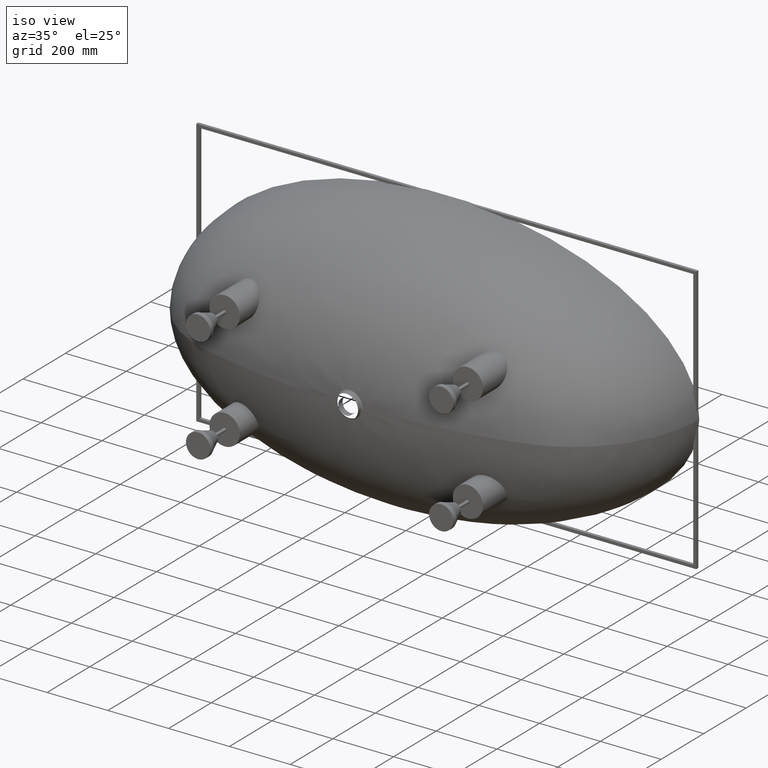
[diagram: clean part render]
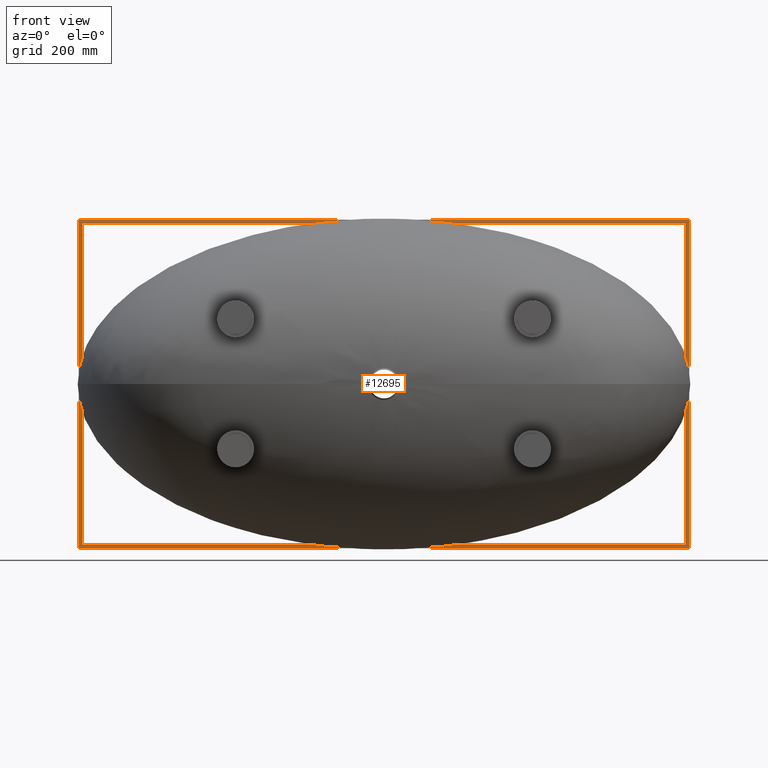
[diagram: tour spotlight — one face highlighted and labeled with its STEP entity id]
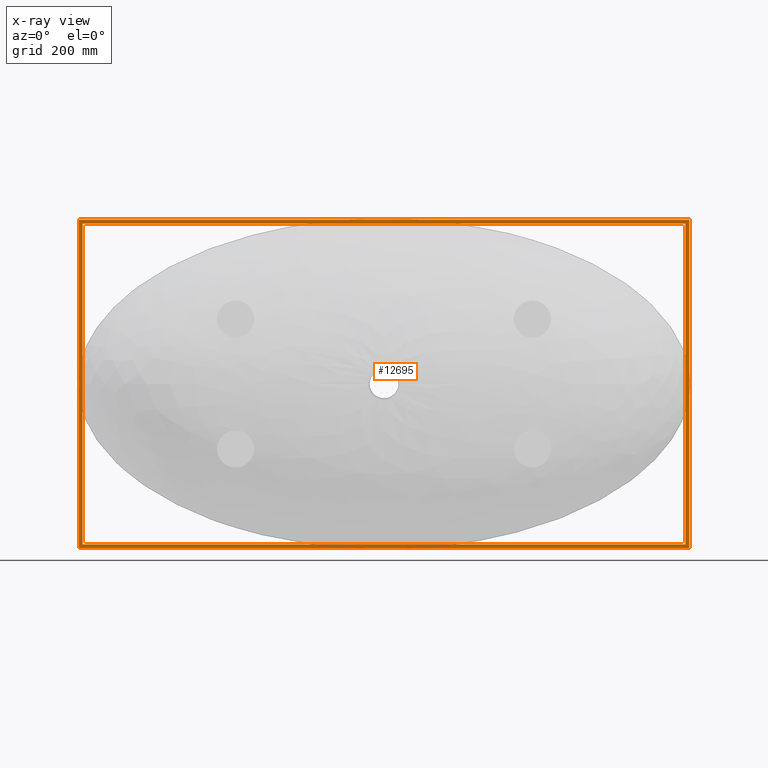
[diagram: x-ray of the same camera — body ghosted, this tour face saturated]
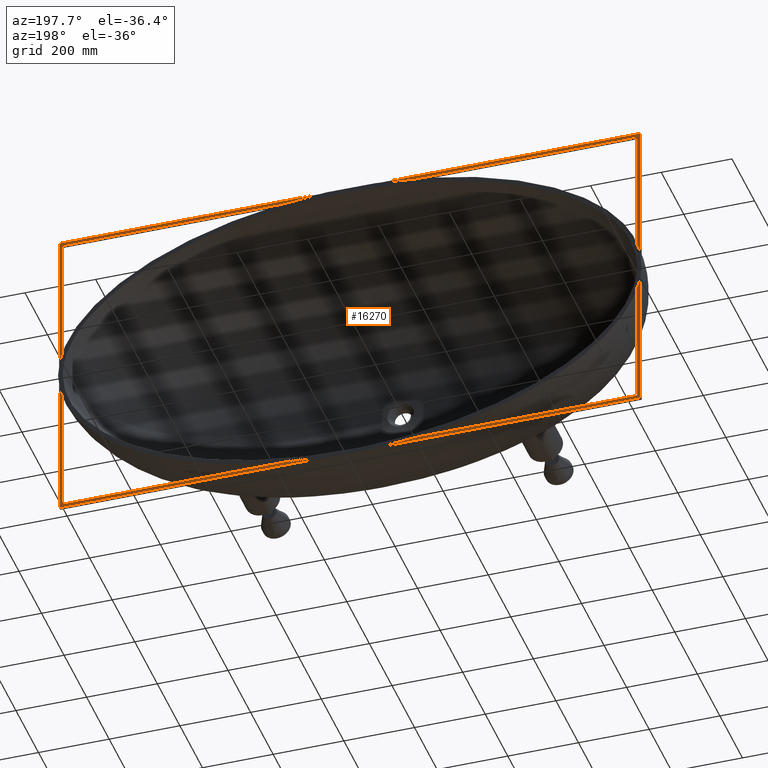
[diagram: tour spotlight — one face highlighted and labeled with its STEP entity id]
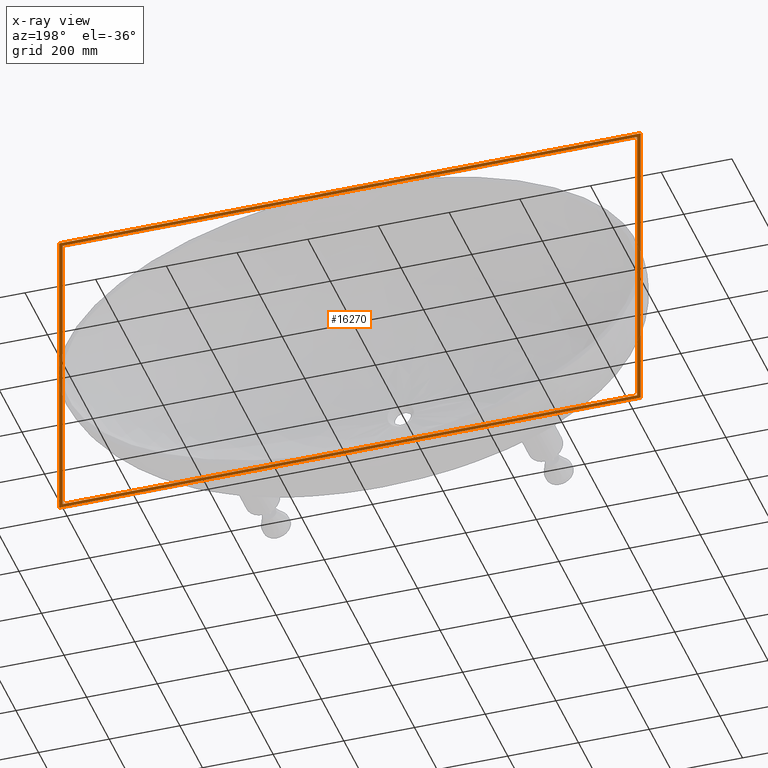
[diagram: x-ray of the same camera — body ghosted, this tour face saturated]
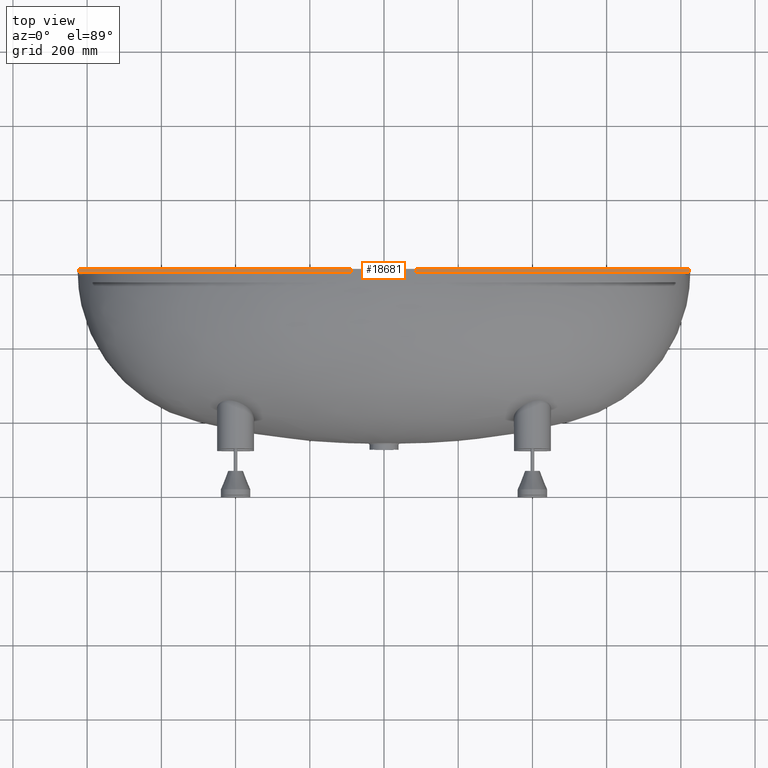
[diagram: tour spotlight — one face highlighted and labeled with its STEP entity id]
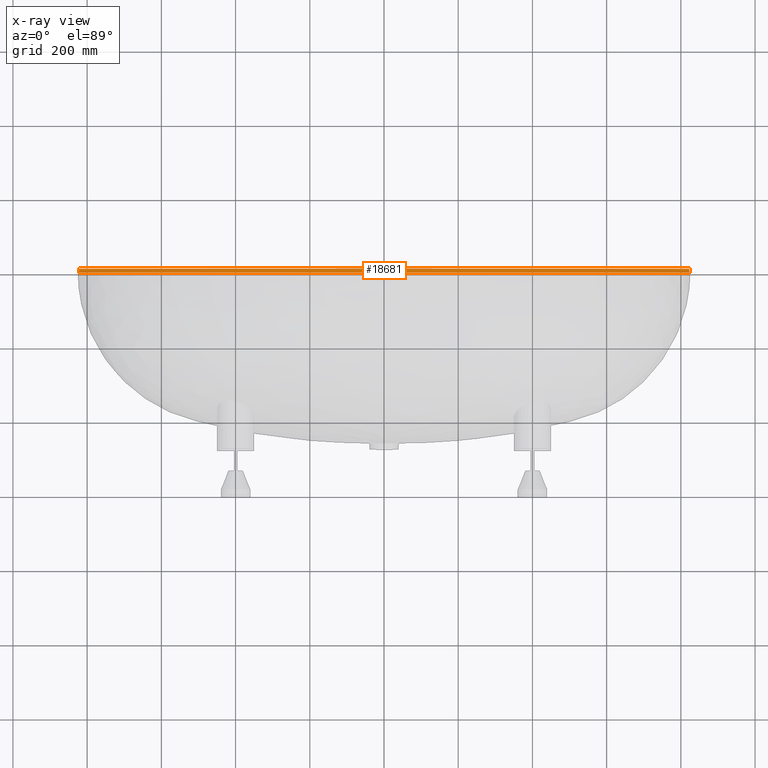
[diagram: x-ray of the same camera — body ghosted, this tour face saturated]
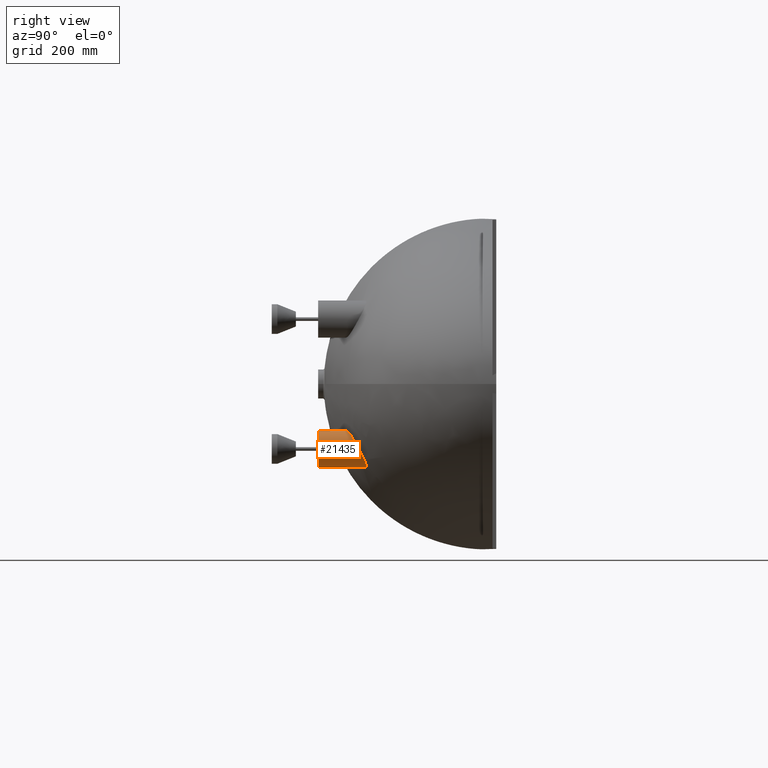
[diagram: tour spotlight — one face highlighted and labeled with its STEP entity id]
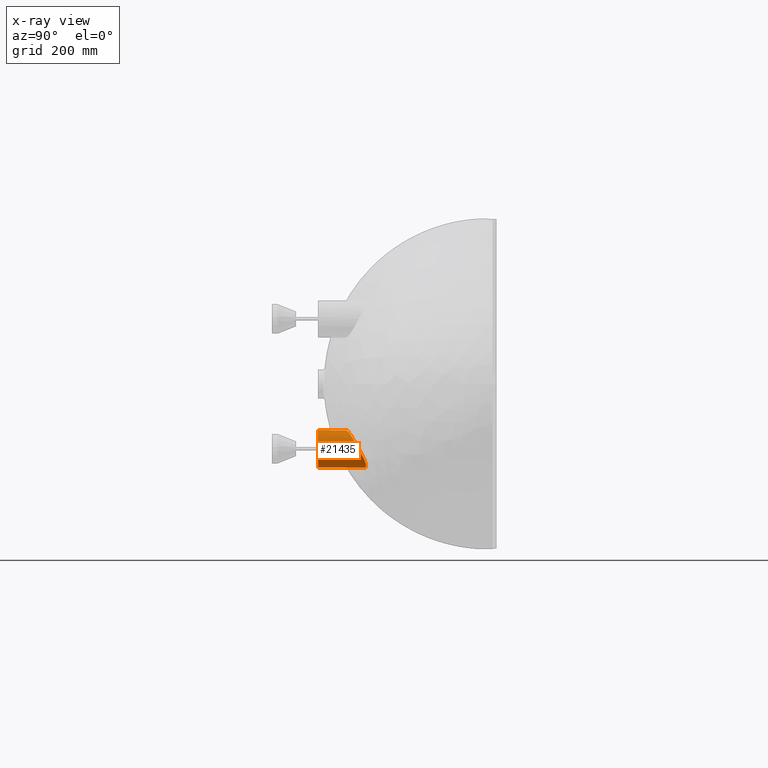
[diagram: x-ray of the same camera — body ghosted, this tour face saturated]
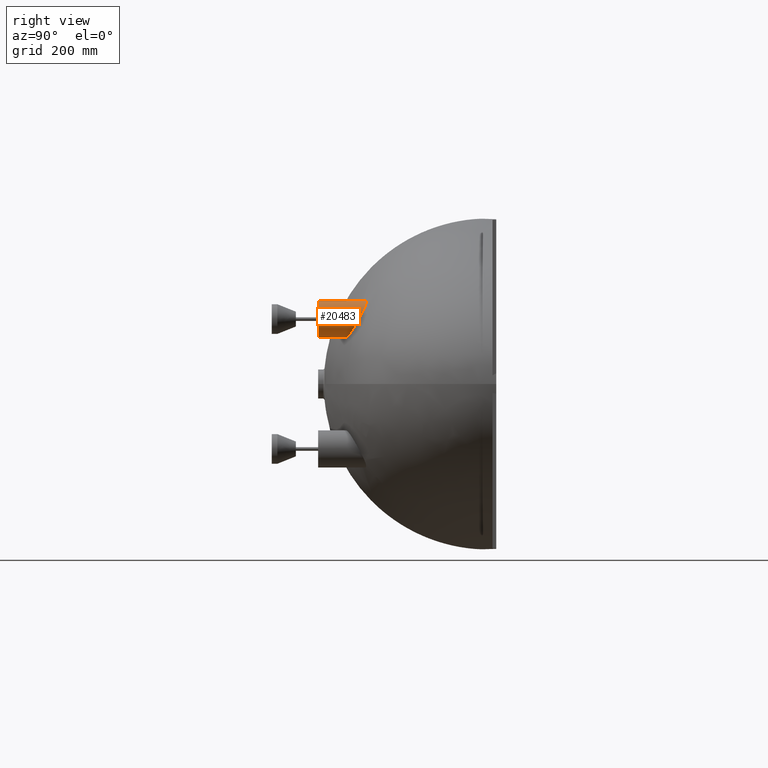
[diagram: tour spotlight — one face highlighted and labeled with its STEP entity id]
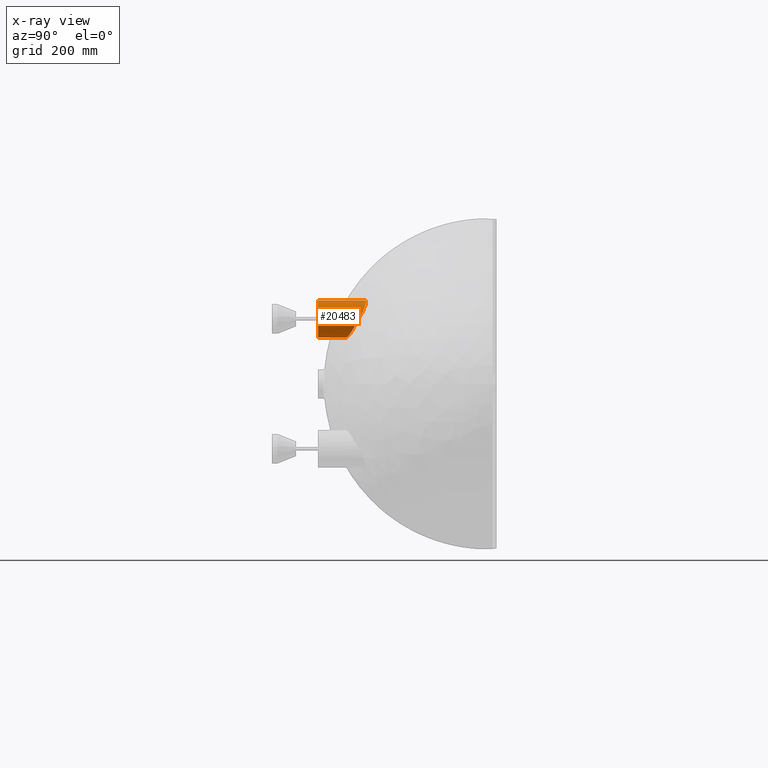
[diagram: x-ray of the same camera — body ghosted, this tour face saturated]
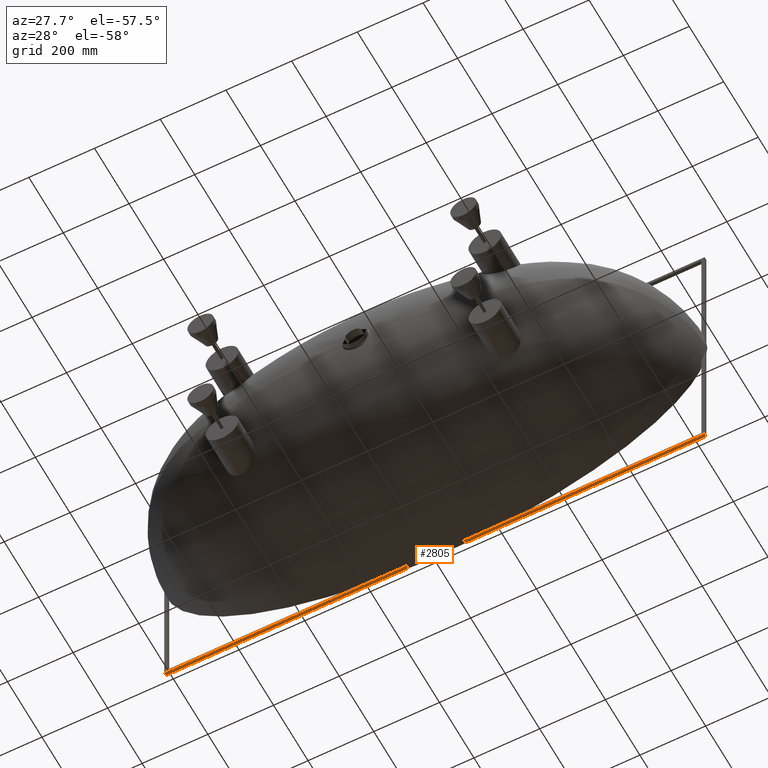
[diagram: tour spotlight — one face highlighted and labeled with its STEP entity id]
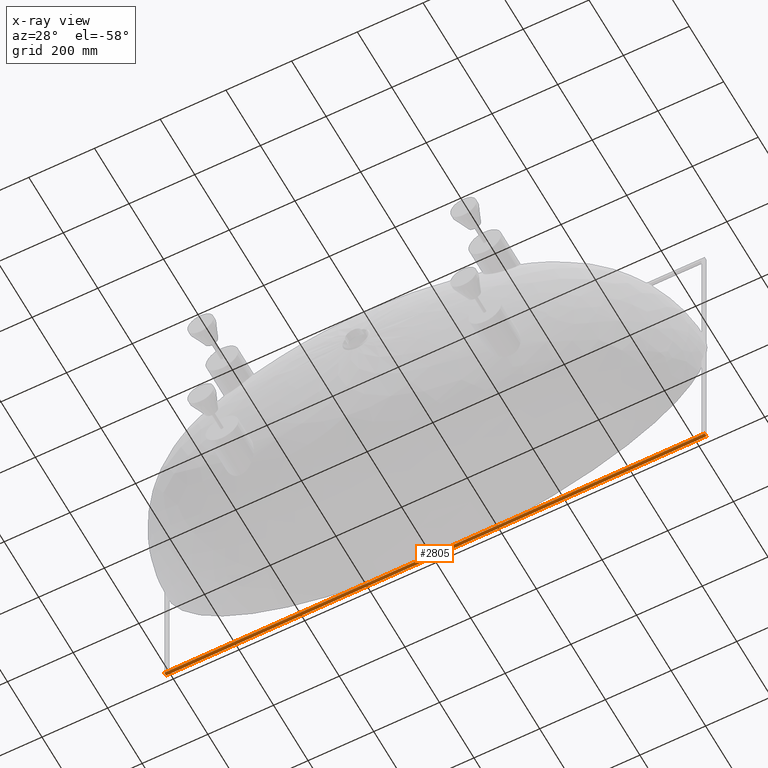
[diagram: x-ray of the same camera — body ghosted, this tour face saturated]
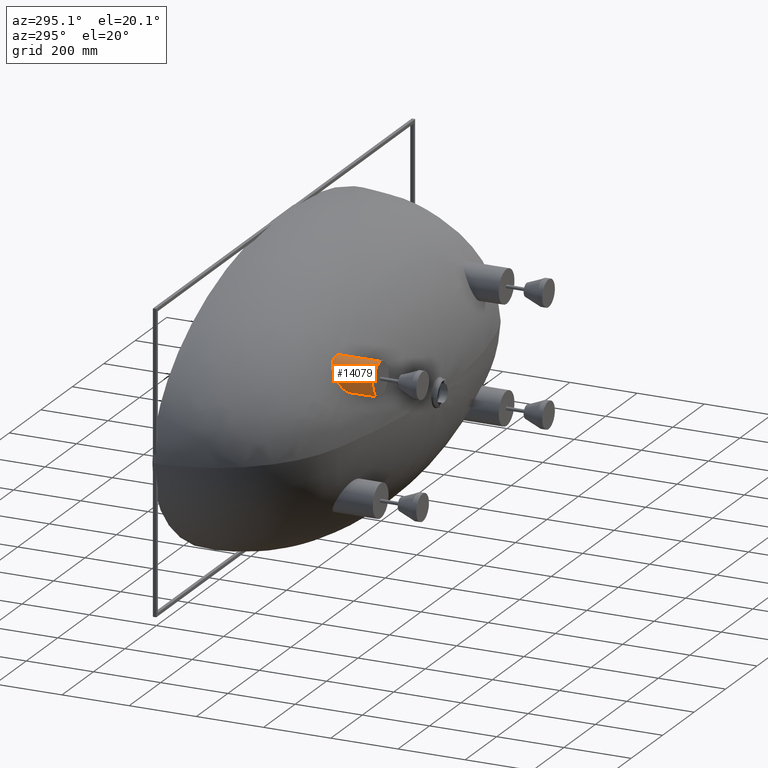
[diagram: tour spotlight — one face highlighted and labeled with its STEP entity id]
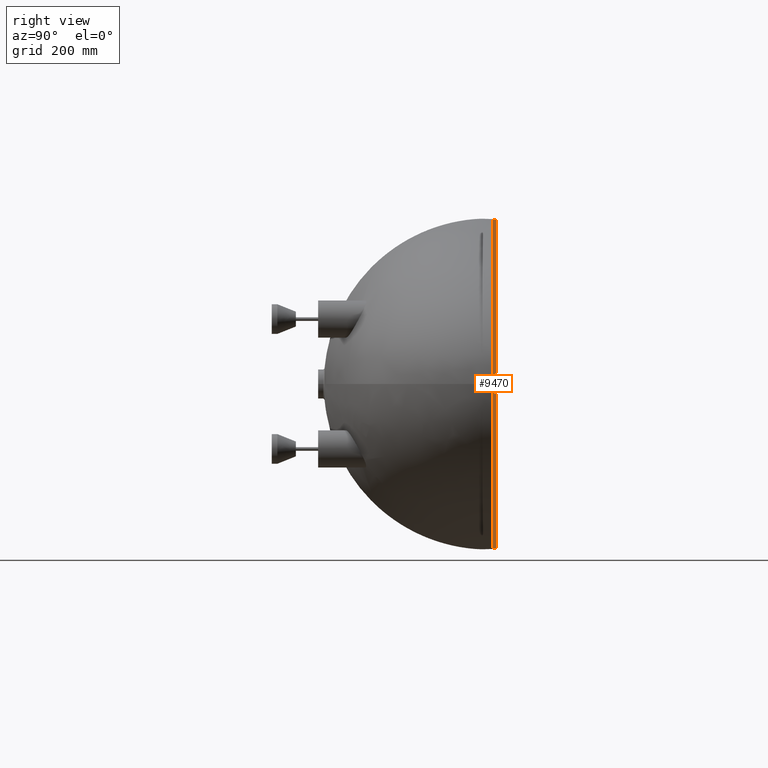
[diagram: tour spotlight — one face highlighted and labeled with its STEP entity id]
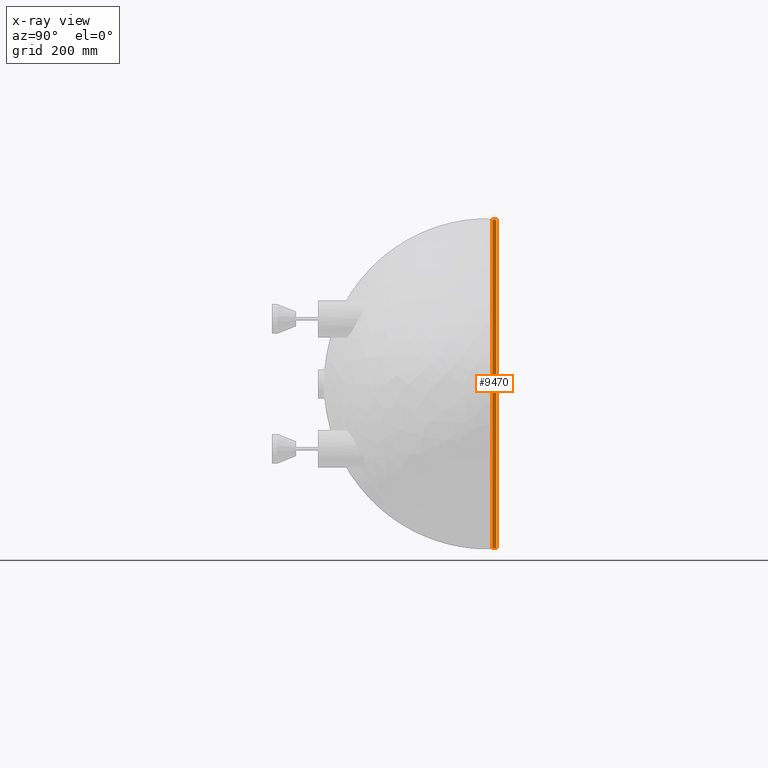
[diagram: x-ray of the same camera — body ghosted, this tour face saturated]
A machine part: a face-by-face anatomy tour. The part has 69 B-rep faces; the first image is the clean iso view, then the 8 largest visible faces are spotlighted one at a time (largest first), each with its STEP entity span.

Face 1 — front view, entity #12695. An x-ray twin of the same camera follows (body ghosted, this face saturated) — the face is partly hidden behind the body. In plain terms, the highlighted planar face has unit normal (-0, -1, -0).
Definition (entity closure, byte-faithful):
#299 = LINE ( 'NONE', #10312, #19734 ) ;
#1295 = CARTESIAN_POINT ( 'NONE',  ( -3.941620205769787300E-015, -10.00000000000000000, -8.827967302839496300E-027 ) ) ;
#2033 = VERTEX_POINT ( 'NONE', #12213 ) ;
#2073 = DIRECTION ( 'NONE',  ( -1.000000000000000000, 3.941620205769786400E-016, -0.0000000000000000000 ) ) ;
#2108 = CARTESIAN_POINT ( 'NONE',  ( 822.5000000000000000, -10.00000000000032500, 442.4999999999999400 ) ) ;
#2440 = CARTESIAN_POINT ( 'NONE',  ( 822.4999999999998900, -10.00000000000032500, -442.4999999999999400 ) ) ;
#2571 = DIRECTION ( 'NONE',  ( 1.000000000000000000, -3.941620205769786400E-016, 0.0000000000000000000 ) ) ;
#2770 = VECTOR ( 'NONE', #3336, 1000.000000000000000 ) ;
#2859 = ORIENTED_EDGE ( 'NONE', *, *, #21845, .F. ) ;
#3017 = VECTOR ( 'NONE', #17895, 1000.000000000000000 ) ;
#3212 = ORIENTED_EDGE ( 'NONE', *, *, #15880, .T. ) ;
#3288 = PLANE ( 'NONE',  #13538 ) ;
#3336 = DIRECTION ( 'NONE',  ( 1.000000000000000000, -3.941620205769787400E-016, 0.0000000000000000000 ) ) ;
#3781 = VERTEX_POINT ( 'NONE', #5572 ) ;
#4453 = CARTESIAN_POINT ( 'NONE',  ( -822.5000000000000000, -9.999999999999676700, -442.4999999999999400 ) ) ;
#4782 = VERTEX_POINT ( 'NONE', #16889 ) ;
#5572 = CARTESIAN_POINT ( 'NONE',  ( -822.5000000000000000, -9.999999999999676700, 442.4999999999999400 ) ) ;
#5633 = EDGE_CURVE ( 'NONE', #4782, #12052, #7680, .T. ) ;
#5949 = VECTOR ( 'NONE', #14589, 1000.000000000000000 ) ;
#6760 = EDGE_CURVE ( 'NONE', #18171, #3781, #15068, .T. ) ;
#7218 = DIRECTION ( 'NONE',  ( 1.000000000000000000, -3.941620205769786900E-016, 0.0000000000000000000 ) ) ;
#7560 = ORIENTED_EDGE ( 'NONE', *, *, #9889, .T. ) ;
#7680 = LINE ( 'NONE', #9326, #3017 ) ;
#8217 = VERTEX_POINT ( 'NONE', #2440 ) ;
#8347 = VERTEX_POINT ( 'NONE', #2108 ) ;
#9105 = CARTESIAN_POINT ( 'NONE',  ( -812.5000000000000000, -9.999999999999678500, 432.4999999999999400 ) ) ;
#9326 = CARTESIAN_POINT ( 'NONE',  ( -812.5000000000000000, -9.999999999999678500, 432.4999999999999400 ) ) ;
#9889 = EDGE_CURVE ( 'NONE', #16369, #4782, #13411, .T. ) ;
#10312 = CARTESIAN_POINT ( 'NONE',  ( -822.5000000000000000, -9.999999999999676700, 442.4999999999999400 ) ) ;
#10721 = VECTOR ( 'NONE', #2073, 1000.000000000000000 ) ;
#11146 = EDGE_CURVE ( 'NONE', #8217, #18171, #24331, .T. ) ;
#11722 = EDGE_CURVE ( 'NONE', #3781, #8347, #299, .T. ) ;
#12052 = VERTEX_POINT ( 'NONE', #20600 ) ;
#12213 = CARTESIAN_POINT ( 'NONE',  ( 812.4999999999998900, -10.00000000000032200, 432.4999999999999400 ) ) ;
#12602 = CARTESIAN_POINT ( 'NONE',  ( 822.5000000000000000, -10.00000000000032500, 442.4999999999999400 ) ) ;
#12695 = ADVANCED_FACE ( 'NONE', ( #24889, #18862 ), #3288, .T. ) ;
#13411 = LINE ( 'NONE', #13646, #14965 ) ;
#13538 = AXIS2_PLACEMENT_3D ( 'NONE', #1295, #18849, #7218 ) ;
#13646 = CARTESIAN_POINT ( 'NONE',  ( -812.5000000000000000, -9.999999999999678500, -432.4999999999999400 ) ) ;
#13736 = ORIENTED_EDGE ( 'NONE', *, *, #19968, .T. ) ;
#13882 = DIRECTION ( 'NONE',  ( -1.000000000000000000, 3.941620205769787400E-016, -0.0000000000000000000 ) ) ;
#13899 = VECTOR ( 'NONE', #15799, 1000.000000000000000 ) ;
#14020 = ORIENTED_EDGE ( 'NONE', *, *, #11722, .F. ) ;
#14589 = DIRECTION ( 'NONE',  ( -1.254489293361759100E-016, 8.827888350375816800E-028, -1.000000000000000000 ) ) ;
#14965 = VECTOR ( 'NONE', #13882, 1000.000000000000000 ) ;
#15068 = LINE ( 'NONE', #19553, #24980 ) ;
#15456 = ORIENTED_EDGE ( 'NONE', *, *, #11146, .F. ) ;
#15799 = DIRECTION ( 'NONE',  ( 0.0000000000000000000, 8.827946315074446000E-028, -1.000000000000000000 ) ) ;
#15880 = EDGE_CURVE ( 'NONE', #12052, #2033, #17934, .T. ) ;
#16369 = VERTEX_POINT ( 'NONE', #17014 ) ;
#16709 = CARTESIAN_POINT ( 'NONE',  ( -822.5000000000000000, -9.999999999999676700, -442.4999999999999400 ) ) ;
#16889 = CARTESIAN_POINT ( 'NONE',  ( -812.5000000000000000, -9.999999999999678500, -432.4999999999999400 ) ) ;
#17014 = CARTESIAN_POINT ( 'NONE',  ( 812.4999999999998900, -10.00000000000032200, -432.4999999999999400 ) ) ;
#17726 = DIRECTION ( 'NONE',  ( -0.0000000000000000000, -8.827888350375816800E-028, 1.000000000000000000 ) ) ;
#17895 = DIRECTION ( 'NONE',  ( -0.0000000000000000000, -8.827946315074446000E-028, 1.000000000000000000 ) ) ;
#17934 = LINE ( 'NONE', #9105, #2770 ) ;
#18171 = VERTEX_POINT ( 'NONE', #16709 ) ;
#18849 = DIRECTION ( 'NONE',  ( -3.941620205769786900E-016, -1.000000000000000000, -8.827888350375816800E-028 ) ) ;
#18862 = FACE_OUTER_BOUND ( 'NONE', #22914, .T. ) ;
#19542 = ORIENTED_EDGE ( 'NONE', *, *, #6760, .F. ) ;
#19553 = CARTESIAN_POINT ( 'NONE',  ( -822.5000000000000000, -9.999999999999676700, 442.4999999999999400 ) ) ;
#19734 = VECTOR ( 'NONE', #2571, 1000.000000000000000 ) ;
#19856 = LINE ( 'NONE', #23397, #13899 ) ;
#19968 = EDGE_CURVE ( 'NONE', #2033, #16369, #19856, .T. ) ;
#20600 = CARTESIAN_POINT ( 'NONE',  ( -812.5000000000000000, -9.999999999999678500, 432.4999999999999400 ) ) ;
#20757 = ORIENTED_EDGE ( 'NONE', *, *, #5633, .T. ) ;
#21845 = EDGE_CURVE ( 'NONE', #8347, #8217, #22007, .T. ) ;
#22007 = LINE ( 'NONE', #12602, #5949 ) ;
#22622 = EDGE_LOOP ( 'NONE', ( #13736, #7560, #20757, #3212 ) ) ;
#22914 = EDGE_LOOP ( 'NONE', ( #19542, #15456, #2859, #14020 ) ) ;
#23397 = CARTESIAN_POINT ( 'NONE',  ( 812.4999999999998900, -10.00000000000032200, 432.4999999999999400 ) ) ;
#24331 = LINE ( 'NONE', #4453, #10721 ) ;
#24889 = FACE_BOUND ( 'NONE', #22622, .T. ) ;
#24980 = VECTOR ( 'NONE', #17726, 1000.000000000000000 ) ;

Face 2 — auxiliary view, entity #16270. An x-ray twin of the same camera follows (body ghosted, this face saturated) — the face is partly hidden behind the body. In plain terms, the highlighted planar face has unit normal (-0, -1, -0).
Definition (entity closure, byte-faithful):
#176 = LINE ( 'NONE', #8892, #15733 ) ;
#216 = CARTESIAN_POINT ( 'NONE',  ( 822.5000000000000000, -3.241982619249555700E-013, 442.4999999999999400 ) ) ;
#480 = CARTESIAN_POINT ( 'NONE',  ( -822.5000000000000000, 3.241982619241743300E-013, 442.4999999999999400 ) ) ;
#614 = CARTESIAN_POINT ( 'NONE',  ( -812.5000000000000000, 3.202566417184133900E-013, 432.4999999999999400 ) ) ;
#992 = DIRECTION ( 'NONE',  ( 1.000000000000000000, -3.941620205769787400E-016, 0.0000000000000000000 ) ) ;
#1135 = VERTEX_POINT ( 'NONE', #12896 ) ;
#1159 = LINE ( 'NONE', #6810, #23640 ) ;
#2028 = DIRECTION ( 'NONE',  ( -1.254489293361759100E-016, 8.827888350375816800E-028, -1.000000000000000000 ) ) ;
#2455 = DIRECTION ( 'NONE',  ( -0.0000000000000000000, -8.827888350375816800E-028, 1.000000000000000000 ) ) ;
#2584 = ORIENTED_EDGE ( 'NONE', *, *, #21487, .F. ) ;
#2612 = DIRECTION ( 'NONE',  ( 0.0000000000000000000, 8.827946315074446000E-028, -1.000000000000000000 ) ) ;
#2806 = VERTEX_POINT ( 'NONE', #3295 ) ;
#3295 = CARTESIAN_POINT ( 'NONE',  ( -822.5000000000000000, 3.241982619241743300E-013, 442.4999999999999400 ) ) ;
#3414 = FACE_BOUND ( 'NONE', #15712, .T. ) ;
#4386 = ORIENTED_EDGE ( 'NONE', *, *, #18377, .T. ) ;
#4492 = CARTESIAN_POINT ( 'NONE',  ( -812.5000000000000000, 3.202566417184133900E-013, 432.4999999999999400 ) ) ;
#4540 = FACE_OUTER_BOUND ( 'NONE', #24725, .T. ) ;
#5280 = PLANE ( 'NONE',  #16104 ) ;
#5503 = VERTEX_POINT ( 'NONE', #17756 ) ;
#5649 = LINE ( 'NONE', #17283, #20806 ) ;
#5699 = ORIENTED_EDGE ( 'NONE', *, *, #20859, .T. ) ;
#5987 = VERTEX_POINT ( 'NONE', #8577 ) ;
#6000 = ORIENTED_EDGE ( 'NONE', *, *, #15488, .F. ) ;
#6744 = LINE ( 'NONE', #480, #10402 ) ;
#6810 = CARTESIAN_POINT ( 'NONE',  ( -812.5000000000000000, 3.202566417184133900E-013, 432.4999999999999400 ) ) ;
#7034 = DIRECTION ( 'NONE',  ( 1.000000000000000000, -3.941620205769786400E-016, 0.0000000000000000000 ) ) ;
#7267 = CARTESIAN_POINT ( 'NONE',  ( -1.767483629214999000E-056, -4.484155085839414600E-041, -3.958562044356023900E-068 ) ) ;
#7754 = LINE ( 'NONE', #16304, #14600 ) ;
#8574 = VECTOR ( 'NONE', #13730, 1000.000000000000000 ) ;
#8577 = CARTESIAN_POINT ( 'NONE',  ( -822.5000000000000000, 3.241982619249555700E-013, -442.4999999999999400 ) ) ;
#8578 = EDGE_CURVE ( 'NONE', #19287, #5503, #19188, .T. ) ;
#8892 = CARTESIAN_POINT ( 'NONE',  ( -822.5000000000000000, 3.241982619249555700E-013, -442.4999999999999400 ) ) ;
#9461 = CARTESIAN_POINT ( 'NONE',  ( 812.4999999999998900, -3.202566417191769500E-013, 432.4999999999999400 ) ) ;
#9477 = EDGE_CURVE ( 'NONE', #1135, #21666, #15950, .T. ) ;
#9842 = ORIENTED_EDGE ( 'NONE', *, *, #8578, .T. ) ;
#10222 = ORIENTED_EDGE ( 'NONE', *, *, #14156, .F. ) ;
#10402 = VECTOR ( 'NONE', #2455, 1000.000000000000000 ) ;
#11175 = DIRECTION ( 'NONE',  ( -3.941620205769786900E-016, -1.000000000000000000, -8.827888350375816800E-028 ) ) ;
#11698 = VERTEX_POINT ( 'NONE', #614 ) ;
#12783 = VECTOR ( 'NONE', #16226, 1000.000000000000000 ) ;
#12896 = CARTESIAN_POINT ( 'NONE',  ( 812.4999999999998900, -3.202566417184133400E-013, -432.4999999999999400 ) ) ;
#13504 = CARTESIAN_POINT ( 'NONE',  ( 822.5000000000000000, -3.241982619249555700E-013, 442.4999999999999400 ) ) ;
#13730 = DIRECTION ( 'NONE',  ( -1.000000000000000000, 3.941620205769787400E-016, -0.0000000000000000000 ) ) ;
#13808 = CARTESIAN_POINT ( 'NONE',  ( -812.5000000000000000, 3.202566417191770100E-013, -432.4999999999999400 ) ) ;
#13825 = EDGE_CURVE ( 'NONE', #5987, #2806, #6744, .T. ) ;
#14085 = VECTOR ( 'NONE', #2028, 1000.000000000000000 ) ;
#14156 = EDGE_CURVE ( 'NONE', #21666, #11698, #22211, .T. ) ;
#14600 = VECTOR ( 'NONE', #2612, 1000.000000000000000 ) ;
#15077 = ORIENTED_EDGE ( 'NONE', *, *, #9477, .F. ) ;
#15488 = EDGE_CURVE ( 'NONE', #11698, #23539, #1159, .T. ) ;
#15712 = EDGE_LOOP ( 'NONE', ( #15077, #2584, #6000, #10222 ) ) ;
#15733 = VECTOR ( 'NONE', #20502, 1000.000000000000000 ) ;
#15950 = LINE ( 'NONE', #13808, #8574 ) ;
#16082 = ORIENTED_EDGE ( 'NONE', *, *, #13825, .T. ) ;
#16104 = AXIS2_PLACEMENT_3D ( 'NONE', #7267, #11175, #24738 ) ;
#16226 = DIRECTION ( 'NONE',  ( -0.0000000000000000000, -8.827946315074446000E-028, 1.000000000000000000 ) ) ;
#16270 = ADVANCED_FACE ( 'NONE', ( #3414, #4540 ), #5280, .F. ) ;
#16304 = CARTESIAN_POINT ( 'NONE',  ( 812.4999999999998900, -3.202566417191769500E-013, 432.4999999999999400 ) ) ;
#17283 = CARTESIAN_POINT ( 'NONE',  ( -822.5000000000000000, 3.241982619241743300E-013, 442.4999999999999400 ) ) ;
#17756 = CARTESIAN_POINT ( 'NONE',  ( 822.4999999999998900, -3.241982619241743300E-013, -442.4999999999999400 ) ) ;
#18213 = CARTESIAN_POINT ( 'NONE',  ( -812.5000000000000000, 3.202566417191770100E-013, -432.4999999999999400 ) ) ;
#18377 = EDGE_CURVE ( 'NONE', #5503, #5987, #176, .T. ) ;
#19188 = LINE ( 'NONE', #216, #14085 ) ;
#19287 = VERTEX_POINT ( 'NONE', #13504 ) ;
#20502 = DIRECTION ( 'NONE',  ( -1.000000000000000000, 3.941620205769786400E-016, -0.0000000000000000000 ) ) ;
#20806 = VECTOR ( 'NONE', #7034, 1000.000000000000000 ) ;
#20859 = EDGE_CURVE ( 'NONE', #2806, #19287, #5649, .T. ) ;
#21487 = EDGE_CURVE ( 'NONE', #23539, #1135, #7754, .T. ) ;
#21666 = VERTEX_POINT ( 'NONE', #18213 ) ;
#22211 = LINE ( 'NONE', #4492, #12783 ) ;
#23539 = VERTEX_POINT ( 'NONE', #9461 ) ;
#23640 = VECTOR ( 'NONE', #992, 1000.000000000000000 ) ;
#24725 = EDGE_LOOP ( 'NONE', ( #16082, #5699, #9842, #4386 ) ) ;
#24738 = DIRECTION ( 'NONE',  ( 1.000000000000000000, -3.941620205769786900E-016, 0.0000000000000000000 ) ) ;

Face 3 — top view, entity #18681. An x-ray twin of the same camera follows (body ghosted, this face saturated) — the face is partly hidden behind the body. In plain terms, the highlighted planar face has unit normal (-0, -0, 1).
Definition (entity closure, byte-faithful):
#299 = LINE ( 'NONE', #10312, #19734 ) ;
#2108 = CARTESIAN_POINT ( 'NONE',  ( 822.5000000000000000, -10.00000000000032500, 442.4999999999999400 ) ) ;
#2571 = DIRECTION ( 'NONE',  ( 1.000000000000000000, -3.941620205769786400E-016, 0.0000000000000000000 ) ) ;
#2806 = VERTEX_POINT ( 'NONE', #3295 ) ;
#3009 = FACE_OUTER_BOUND ( 'NONE', #6867, .T. ) ;
#3107 = CARTESIAN_POINT ( 'NONE',  ( -822.5000000000000000, -9.999999999999676700, 442.4999999999999400 ) ) ;
#3295 = CARTESIAN_POINT ( 'NONE',  ( -822.5000000000000000, 3.241982619241743300E-013, 442.4999999999999400 ) ) ;
#3611 = DIRECTION ( 'NONE',  ( -3.479649429674715800E-043, -8.827967302839494800E-028, 1.000000000000000000 ) ) ;
#3781 = VERTEX_POINT ( 'NONE', #5572 ) ;
#4566 = CARTESIAN_POINT ( 'NONE',  ( 822.5000000000000000, -10.00000000000032500, 442.4999999999999400 ) ) ;
#4801 = VECTOR ( 'NONE', #24020, 1000.000000000000000 ) ;
#5572 = CARTESIAN_POINT ( 'NONE',  ( -822.5000000000000000, -9.999999999999676700, 442.4999999999999400 ) ) ;
#5649 = LINE ( 'NONE', #17283, #20806 ) ;
#6809 = ORIENTED_EDGE ( 'NONE', *, *, #21962, .F. ) ;
#6867 = EDGE_LOOP ( 'NONE', ( #22577, #6809, #17596, #9936 ) ) ;
#7034 = DIRECTION ( 'NONE',  ( 1.000000000000000000, -3.941620205769786400E-016, 0.0000000000000000000 ) ) ;
#7170 = LINE ( 'NONE', #4566, #4801 ) ;
#8347 = VERTEX_POINT ( 'NONE', #2108 ) ;
#9936 = ORIENTED_EDGE ( 'NONE', *, *, #21730, .T. ) ;
#10312 = CARTESIAN_POINT ( 'NONE',  ( -822.5000000000000000, -9.999999999999676700, 442.4999999999999400 ) ) ;
#11216 = VECTOR ( 'NONE', #14413, 1000.000000000000000 ) ;
#11722 = EDGE_CURVE ( 'NONE', #3781, #8347, #299, .T. ) ;
#12416 = CARTESIAN_POINT ( 'NONE',  ( -822.5000000000000000, -9.999999999999676700, 442.4999999999999400 ) ) ;
#13338 = PLANE ( 'NONE',  #22547 ) ;
#13504 = CARTESIAN_POINT ( 'NONE',  ( 822.5000000000000000, -3.241982619249555700E-013, 442.4999999999999400 ) ) ;
#14413 = DIRECTION ( 'NONE',  ( 3.941620205769787400E-016, 1.000000000000000000, 8.827967302839494800E-028 ) ) ;
#17283 = CARTESIAN_POINT ( 'NONE',  ( -822.5000000000000000, 3.241982619241743300E-013, 442.4999999999999400 ) ) ;
#17287 = DIRECTION ( 'NONE',  ( 0.0000000000000000000, -1.000000000000000000, -8.827967302839494800E-028 ) ) ;
#17596 = ORIENTED_EDGE ( 'NONE', *, *, #11722, .T. ) ;
#18537 = LINE ( 'NONE', #12416, #11216 ) ;
#18681 = ADVANCED_FACE ( 'NONE', ( #3009 ), #13338, .T. ) ;
#19287 = VERTEX_POINT ( 'NONE', #13504 ) ;
#19734 = VECTOR ( 'NONE', #2571, 1000.000000000000000 ) ;
#20806 = VECTOR ( 'NONE', #7034, 1000.000000000000000 ) ;
#20859 = EDGE_CURVE ( 'NONE', #2806, #19287, #5649, .T. ) ;
#21730 = EDGE_CURVE ( 'NONE', #8347, #19287, #7170, .T. ) ;
#21962 = EDGE_CURVE ( 'NONE', #3781, #2806, #18537, .T. ) ;
#22547 = AXIS2_PLACEMENT_3D ( 'NONE', #3107, #3611, #17287 ) ;
#22577 = ORIENTED_EDGE ( 'NONE', *, *, #20859, .F. ) ;
#24020 = DIRECTION ( 'NONE',  ( 3.941620205769787400E-016, 1.000000000000000000, 8.827967302839494800E-028 ) ) ;

Face 4 — right view, entity #21435. An x-ray twin of the same camera follows (body ghosted, this face saturated) — the face is partly hidden behind the body. In plain terms, the highlighted cylindrical surface (edge-blend (fillet) strip) has radius 50 mm, axis along (-0, -1, -0).
Definition (entity closure, byte-faithful):
#367 = CARTESIAN_POINT ( 'NONE',  ( 449.9332865623668500, -372.2780104887887700, -171.9948094145346100 ) ) ;
#481 = CARTESIAN_POINT ( 'NONE',  ( 444.7692868460053400, -383.0427755121959300, -152.6808284115977600 ) ) ;
#531 = CARTESIAN_POINT ( 'NONE',  ( 448.1171067587253000, -378.1460567798190500, -161.3204282926656100 ) ) ;
#1318 = CARTESIAN_POINT ( 'NONE',  ( 449.8783388601435100, -368.0983205394682600, -179.6882020016446400 ) ) ;
#1652 = CARTESIAN_POINT ( 'NONE',  ( 429.6066996143856600, -394.3710766572065700, -134.6747455832633900 ) ) ;
#2595 = CARTESIAN_POINT ( 'NONE',  ( 446.6453164579798500, -380.6102599797743600, -156.9277818183923300 ) ) ;
#2809 = CARTESIAN_POINT ( 'NONE',  ( 441.2569730049145800, -356.0678305649066100, -203.4346283171057100 ) ) ;
#2863 = CARTESIAN_POINT ( 'NONE',  ( 411.7814517921712500, -401.6090009684790500, -126.4005163048892100 ) ) ;
#3026 = CARTESIAN_POINT ( 'NONE',  ( 425.7088371168681000, -350.8973216238273400, -217.8932283022084300 ) ) ;
#3390 = CARTESIAN_POINT ( 'NONE',  ( 444.8801501782890000, -359.1032507553350700, -197.0550100560422800 ) ) ;
#4632 = CARTESIAN_POINT ( 'NONE',  ( 449.0156398971576600, -376.0628222925553800, -165.0968756921169500 ) ) ;
#4669 = ORIENTED_EDGE ( 'NONE', *, *, #5487, .T. ) ;
#4723 = CARTESIAN_POINT ( 'NONE',  ( 448.5180824203070000, -377.3184852463085100, -162.8174312808360500 ) ) ;
#5035 = EDGE_CURVE ( 'NONE', #21366, #17521, #23637, .T. ) ;
#5487 = EDGE_CURVE ( 'NONE', #21366, #17833, #17956, .T. ) ;
#5494 = CARTESIAN_POINT ( 'NONE',  ( 400.0000000000000600, -480.0000000000000000, -175.0000000000000000 ) ) ;
#5583 = CARTESIAN_POINT ( 'NONE',  ( 400.0000000000000000, -353.4300241764697100, -224.9999999999999700 ) ) ;
#5715 = CARTESIAN_POINT ( 'NONE',  ( 400.0000000000000600, 500000.0000000000600, -175.0000000000000000 ) ) ;
#6043 = ORIENTED_EDGE ( 'NONE', *, *, #22961, .T. ) ;
#6049 = CARTESIAN_POINT ( 'NONE',  ( 413.6514875407602900, -350.8229629405279900, -223.1083518963612000 ) ) ;
#6227 = CYLINDRICAL_SURFACE ( 'NONE', #6966, 50.00000000000007100 ) ;
#6257 = CARTESIAN_POINT ( 'NONE',  ( 449.8174072479678200, -373.1174764834791500, -170.4600618553315900 ) ) ;
#6347 = CARTESIAN_POINT ( 'NONE',  ( 416.6086055466951200, -400.0045553435077200, -127.8095506586904500 ) ) ;
#6648 = CARTESIAN_POINT ( 'NONE',  ( 406.7913100886085500, -403.1039903358691300, -125.3469340216435600 ) ) ;
#6704 = CARTESIAN_POINT ( 'NONE',  ( 443.6602503815133800, -384.2471569663890700, -150.6198615078442600 ) ) ;
#6966 = AXIS2_PLACEMENT_3D ( 'NONE', #5715, #13500, #14328 ) ;
#7469 = CARTESIAN_POINT ( 'NONE',  ( 443.3496186857604500, -357.7164962229350600, -199.9294440193809000 ) ) ;
#7480 = DIRECTION ( 'NONE',  ( 0.0000000000000000000, 0.0000000000000000000, 1.000000000000000000 ) ) ;
#7488 = CARTESIAN_POINT ( 'NONE',  ( 433.3550575992823000, -392.2642344162008500, -137.7171293983492100 ) ) ;
#7699 = VECTOR ( 'NONE', #15850, 1000.000000000000000 ) ;
#8175 = CARTESIAN_POINT ( 'NONE',  ( 411.0955283172620500, -351.1132963555984400, -223.7611288621995400 ) ) ;
#8225 = CARTESIAN_POINT ( 'NONE',  ( 450.0687416859922200, -369.7656156384343300, -176.6056822472138800 ) ) ;
#8694 = CARTESIAN_POINT ( 'NONE',  ( 421.8597226788143100, -350.5732783695898400, -220.0024248065137200 ) ) ;
#9239 = CARTESIAN_POINT ( 'NONE',  ( 414.2212330124730200, -400.8205880598401900, -127.0578202058452500 ) ) ;
#9567 = CARTESIAN_POINT ( 'NONE',  ( 432.1073823103503200, -352.1141538521178500, -213.3672287985660900 ) ) ;
#10033 = CARTESIAN_POINT ( 'NONE',  ( 428.6595422833376600, -351.3435036323635400, -215.9803034126203400 ) ) ;
#10586 = CIRCLE ( 'NONE', #13437, 50.00000000000007100 ) ;
#10699 = CARTESIAN_POINT ( 'NONE',  ( 406.8334687949735600, -351.7292113696256000, -224.6531840782780600 ) ) ;
#10734 = CARTESIAN_POINT ( 'NONE',  ( 439.8456677101626700, -387.8248127150376400, -144.6298991710889700 ) ) ;
#11459 = CARTESIAN_POINT ( 'NONE',  ( 410.9513520735895300, -401.8651372587500000, -126.2066634557448600 ) ) ;
#11523 = CARTESIAN_POINT ( 'NONE',  ( 400.0000000000000000, -353.4300241764697100, -224.9999999999999700 ) ) ;
#12063 = CARTESIAN_POINT ( 'NONE',  ( 448.8294933736664800, -364.8116447889097500, -185.8691962605469700 ) ) ;
#12286 = ORIENTED_EDGE ( 'NONE', *, *, #5035, .F. ) ;
#12344 = VERTEX_POINT ( 'NONE', #16259 ) ;
#12395 = DIRECTION ( 'NONE',  ( -0.0000000000000000000, -1.000000000000000000, -0.0000000000000000000 ) ) ;
#12800 = CARTESIAN_POINT ( 'NONE',  ( 446.5220105839038600, -360.9242711156703600, -193.3904032767662800 ) ) ;
#13437 = AXIS2_PLACEMENT_3D ( 'NONE', #5494, #19121, #7480 ) ;
#13500 = DIRECTION ( 'NONE',  ( -0.0000000000000000000, -1.000000000000000000, -0.0000000000000000000 ) ) ;
#13760 = CARTESIAN_POINT ( 'NONE',  ( 434.0183662152967400, -352.7129526296808400, -211.6535512763513500 ) ) ;
#14052 = CARTESIAN_POINT ( 'NONE',  ( 448.0524586926703700, -363.2222942390677600, -188.9075542087178100 ) ) ;
#14290 = CARTESIAN_POINT ( 'NONE',  ( 444.5152070013414200, -358.7480237745630200, -197.7828629471847000 ) ) ;
#14328 = DIRECTION ( 'NONE',  ( 0.0000000000000000000, 0.0000000000000000000, -1.000000000000000000 ) ) ;
#14606 = CARTESIAN_POINT ( 'NONE',  ( 436.4389834619457200, -353.6208170366917300, -209.2479676790316300 ) ) ;
#14697 = CARTESIAN_POINT ( 'NONE',  ( 400.0000000000000600, 500000.0000000000600, -225.0000000000000600 ) ) ;
#14751 = CARTESIAN_POINT ( 'NONE',  ( 442.4639700432670700, -385.4460580742082200, -148.5911122688710900 ) ) ;
#14780 = CARTESIAN_POINT ( 'NONE',  ( 439.2971738890192300, -354.8846190117179200, -206.1013989794555000 ) ) ;
#14913 = FACE_OUTER_BOUND ( 'NONE', #16965, .T. ) ;
#15527 = CARTESIAN_POINT ( 'NONE',  ( 400.0000000000000600, -480.0000000000000000, -225.0000000000000600 ) ) ;
#15539 = CARTESIAN_POINT ( 'NONE',  ( 447.1807996280550700, -379.7926193348747000, -158.3759574295543500 ) ) ;
#15850 = DIRECTION ( 'NONE',  ( -0.0000000000000000000, -1.000000000000000000, -0.0000000000000000000 ) ) ;
#16259 = CARTESIAN_POINT ( 'NONE',  ( 400.0000000000000600, -480.0000000000000000, -124.9999999999999100 ) ) ;
#16261 = CARTESIAN_POINT ( 'NONE',  ( 434.5239281697723200, -391.5448178016880500, -138.7977178176208800 ) ) ;
#16321 = VECTOR ( 'NONE', #12395, 1000.000000000000000 ) ;
#16682 = CARTESIAN_POINT ( 'NONE',  ( 449.1642759519010000, -375.6409450919057900, -165.8634241436971900 ) ) ;
#16774 = CARTESIAN_POINT ( 'NONE',  ( 435.8489651085620300, -353.3800596982183000, -209.8651529834167800 ) ) ;
#16806 = CARTESIAN_POINT ( 'NONE',  ( 443.7500613549927400, -358.0548348087590400, -199.2197157265906100 ) ) ;
#16827 = CARTESIAN_POINT ( 'NONE',  ( 403.4180318455095700, -403.9685938790863700, -124.9999999999999300 ) ) ;
#16907 = CARTESIAN_POINT ( 'NONE',  ( 425.5527450732906800, -396.4111471911574500, -131.8979299505994300 ) ) ;
#16965 = EDGE_LOOP ( 'NONE', ( #4669, #17024, #6043, #12286 ) ) ;
#17024 = ORIENTED_EDGE ( 'NONE', *, *, #20314, .T. ) ;
#17048 = CARTESIAN_POINT ( 'NONE',  ( 418.6582137783358900, -350.5301297599321500, -221.4212965422391300 ) ) ;
#17153 = CARTESIAN_POINT ( 'NONE',  ( 447.5918656666283400, -362.4439480449867100, -190.4116424764061200 ) ) ;
#17467 = CARTESIAN_POINT ( 'NONE',  ( 449.4242991219480200, -374.7991661295398600, -167.3946265997755100 ) ) ;
#17521 = VERTEX_POINT ( 'NONE', #15527 ) ;
#17685 = CARTESIAN_POINT ( 'NONE',  ( 414.5031787206066300, -350.7480182265848000, -222.8584835248759900 ) ) ;
#17833 = VERTEX_POINT ( 'NONE', #22182 ) ;
#17946 = CARTESIAN_POINT ( 'NONE',  ( 449.1461780721605200, -365.6235353815716800, -184.3332825020677300 ) ) ;
#17956 = B_SPLINE_CURVE_WITH_KNOTS ( 'NONE', 3,
 ( #5583, #23545, #10699, #8175, #19583, #6049, #17685, #17979, #17048, #8694, #21328, #3026, #22123, #21978, #10033, #19566, #9567, #13760, #22193, #16774, #14606, #14780, #2809, #7469, #16806, #14290, #3390, #19289, #12800, #17153, #14052, #12063, #17946, #1318, #8225, #367, #6257, #21778, #17467, #16682, #4632, #4723, #531, #15539, #2595, #22301, #481, #6704, #25242, #14751, #21504, #10734, #21696, #16261, #7488, #21250, #1652, #16907, #19933, #22368, #6347, #9239, #20223, #2863, #11459, #6648, #16827, #20424 ),
 .UNSPECIFIED., .F., .F.,
 ( 4, 2, 2, 2, 2, 2, 2, 2, 2, 2, 2, 2, 2, 2, 2, 2, 2, 2, 2, 2, 2, 2, 2, 2, 2, 2, 2, 2, 2, 2, 2, 2, 2, 4 ),
 ( 0.0000000000000000000, 0.01051975159428218000, 0.01314968949285261900, 0.01577962739142305500, 0.02103950318856377700, 0.02629937898570449900, 0.02892931688427487900, 0.03155925478284525600, 0.03681913057998591200, 0.03944906847855622600, 0.04207900637712653400, 0.05259875797140794300, 0.05522869586997827100, 0.05785863376854859900, 0.06311850956568919300, 0.06837838536282980800, 0.07363826115997040800, 0.08415801275425148500, 0.08941788855139194700, 0.09204782644996219200, 0.09467776434853243700, 0.09993764014567292600, 0.1051975159428134000, 0.1104573917399538600, 0.1130873296385241100, 0.1157172675370943500, 0.1262370191313754200, 0.1314968949285159600, 0.1367567707256564500, 0.1472765223199375700, 0.1525363981170780900, 0.1551663360156483900, 0.1577962739142186300, 0.1683160255084992200 ),
 .UNSPECIFIED. ) ;
#17979 = CARTESIAN_POINT ( 'NONE',  ( 417.0194577298937600, -350.5760105493142200, -222.0472593441006700 ) ) ;
#19121 = DIRECTION ( 'NONE',  ( 0.0000000000000000000, 1.000000000000000000, 0.0000000000000000000 ) ) ;
#19289 = CARTESIAN_POINT ( 'NONE',  ( 445.9127872311319700, -360.1829220120585000, -194.8650789844986700 ) ) ;
#19566 = CARTESIAN_POINT ( 'NONE',  ( 430.7689167243748300, -351.7701238073038300, -214.4498705996838600 ) ) ;
#19583 = CARTESIAN_POINT ( 'NONE',  ( 411.9476799611714500, -351.0056836111957100, -223.5595467215775300 ) ) ;
#19933 = CARTESIAN_POINT ( 'NONE',  ( 422.6901298175747000, -397.6745865608757000, -130.3238955856076600 ) ) ;
#20223 = CARTESIAN_POINT ( 'NONE',  ( 413.4150889013112600, -401.0871007884508700, -126.8258595143358300 ) ) ;
#20314 = EDGE_CURVE ( 'NONE', #17833, #12344, #21432, .T. ) ;
#20424 = CARTESIAN_POINT ( 'NONE',  ( 400.0000000000002800, -404.7099913692891300, -124.9999999999999700 ) ) ;
#21250 = CARTESIAN_POINT ( 'NONE',  ( 430.8971143608321200, -393.6770191531281300, -135.6561233236412000 ) ) ;
#21328 = CARTESIAN_POINT ( 'NONE',  ( 423.4224743164329000, -350.6623097120436800, -219.2095131984528400 ) ) ;
#21366 = VERTEX_POINT ( 'NONE', #11523 ) ;
#21432 = LINE ( 'NONE', #23996, #16321 ) ;
#21435 = ADVANCED_FACE ( 'NONE', ( #14913 ), #6227, .T. ) ;
#21504 = CARTESIAN_POINT ( 'NONE',  ( 442.0406362696670600, -385.8451893549555500, -147.9221277004959900 ) ) ;
#21696 = CARTESIAN_POINT ( 'NONE',  ( 437.8558844909996400, -389.3454986112626000, -142.1829401783020300 ) ) ;
#21778 = CARTESIAN_POINT ( 'NONE',  ( 449.5360424735039800, -374.3785113272377900, -168.1606453608519600 ) ) ;
#21978 = CARTESIAN_POINT ( 'NONE',  ( 427.9394350750373000, -351.2162282746373900, -216.4748243474313100 ) ) ;
#22123 = CARTESIAN_POINT ( 'NONE',  ( 426.4639360501032000, -350.9930280068106800, -217.4315115886597000 ) ) ;
#22182 = CARTESIAN_POINT ( 'NONE',  ( 400.0000000000002800, -404.7099913692891300, -124.9999999999999700 ) ) ;
#22193 = CARTESIAN_POINT ( 'NONE',  ( 434.6392037246513400, -352.9263732374961900, -211.0673364310986800 ) ) ;
#22301 = CARTESIAN_POINT ( 'NONE',  ( 445.4395573685980000, -382.2353388436845900, -154.0802188440079900 ) ) ;
#22368 = CARTESIAN_POINT ( 'NONE',  ( 418.1588519854760200, -399.4385864865253700, -128.3850327816740600 ) ) ;
#22961 = EDGE_CURVE ( 'NONE', #12344, #17521, #10586, .T. ) ;
#23545 = CARTESIAN_POINT ( 'NONE',  ( 403.4198267897715500, -352.4691012811263700, -225.0000000000000000 ) ) ;
#23637 = LINE ( 'NONE', #14697, #7699 ) ;
#23996 = CARTESIAN_POINT ( 'NONE',  ( 400.0000000000000600, 500000.0000000000600, -124.9999999999999100 ) ) ;
#25242 = CARTESIAN_POINT ( 'NONE',  ( 443.2732739869075000, -384.6474894080295100, -149.9392366140836800 ) ) ;

Face 5 — right view, entity #20483. An x-ray twin of the same camera follows (body ghosted, this face saturated) — the face is partly hidden behind the body. In plain terms, the highlighted cylindrical surface (edge-blend (fillet) strip) has radius 50 mm, axis along (-0, -1, -0).
Definition (entity closure, byte-faithful):
#353 = VERTEX_POINT ( 'NONE', #14035 ) ;
#1112 = ORIENTED_EDGE ( 'NONE', *, *, #20587, .T. ) ;
#1201 = CARTESIAN_POINT ( 'NONE',  ( 418.9486422923436600, -399.1314564773371100, 128.7221978374861400 ) ) ;
#1282 = CARTESIAN_POINT ( 'NONE',  ( 443.3239053976514000, -384.5958501288025100, 150.0268479223984700 ) ) ;
#1359 = CARTESIAN_POINT ( 'NONE',  ( 449.1097691549962300, -365.5762195353034900, 184.4256423107834500 ) ) ;
#1444 = CARTESIAN_POINT ( 'NONE',  ( 435.8841030702275200, -353.3752978402553700, 209.8591039162667800 ) ) ;
#1532 = CARTESIAN_POINT ( 'NONE',  ( 411.9895228027822300, -350.9851754587483600, 223.5724125193510800 ) ) ;
#2200 = B_SPLINE_CURVE_WITH_KNOTS ( 'NONE', 3,
 ( #16789, #10842, #20583, #8965, #22526, #10935, #24496, #12899, #1201, #14892, #3185, #16876, #5133, #18753, #7117, #20670, #9044, #22612, #11021, #24587, #12987, #1282, #14978, #3272, #16953, #5213, #18836, #7201, #20749, #9126, #22692, #11105, #24670, #13074, #1359, #15069, #3356, #17035, #5303, #18922, #7290, #20841, #9203, #22776, #11197, #24757, #13165, #1444, #15159, #3441, #17121, #5387, #19013, #7377, #20930, #9287, #22858, #11287, #24844, #13251, #1532, #15254, #3523, #17201, #5470, #19097, #7455, #21010 ),
 .UNSPECIFIED., .F., .F.,
 ( 4, 2, 2, 2, 2, 2, 2, 2, 2, 2, 2, 2, 2, 2, 2, 2, 2, 2, 2, 2, 2, 2, 2, 2, 2, 2, 2, 2, 2, 2, 2, 2, 2, 4 ),
 ( 0.0000000000000000000, 0.01049396639672137800, 0.01574094959508212700, 0.01836444119426246900, 0.02098793279344281900, 0.03148189919016408700, 0.03410539078934436000, 0.03672888238852462700, 0.04197586558688529100, 0.05246983198360658000, 0.05509332358278689500, 0.05771681518196721700, 0.06296379838032777100, 0.06821078157868834500, 0.07345776477704892000, 0.08395173117376994500, 0.09444569757049099700, 0.09706918916967122200, 0.09969268076885146000, 0.1049396639672118500, 0.1154336303639326000, 0.1180571219631127600, 0.1206806135622929100, 0.1259275967606531800, 0.1311745799590134700, 0.1337980715581936200, 0.1364215631573737500, 0.1469155295540944300, 0.1495390211532745800, 0.1521625127524547400, 0.1574094959508151300, 0.1600329875499953400, 0.1626564791491755500, 0.1679034623475358400 ),
 .UNSPECIFIED. ) ;
#3185 = CARTESIAN_POINT ( 'NONE',  ( 425.6134783721649300, -396.3822409107710300, 131.9359154630430700 ) ) ;
#3272 = CARTESIAN_POINT ( 'NONE',  ( 444.8158594862158000, -382.9885804317098100, 152.7743735653804700 ) ) ;
#3356 = CARTESIAN_POINT ( 'NONE',  ( 448.6135394328061400, -364.3669686522093800, 186.7189894651517400 ) ) ;
#3441 = CARTESIAN_POINT ( 'NONE',  ( 432.7548491592466500, -352.3167331179428700, 212.7870830945767300 ) ) ;
#3523 = CARTESIAN_POINT ( 'NONE',  ( 408.5798034410572100, -351.4913114837093500, 224.2660493022300700 ) ) ;
#4695 = CYLINDRICAL_SURFACE ( 'NONE', #21515, 50.00000000000007100 ) ;
#5133 = CARTESIAN_POINT ( 'NONE',  ( 429.6222124344331000, -394.3514243715237600, 134.7112166275034600 ) ) ;
#5213 = CARTESIAN_POINT ( 'NONE',  ( 446.6855957097431000, -380.5512865694161600, 157.0318743879528500 ) ) ;
#5303 = CARTESIAN_POINT ( 'NONE',  ( 447.5675072171268900, -362.4059384486240600, 190.4855517332069600 ) ) ;
#5387 = CARTESIAN_POINT ( 'NONE',  ( 430.7423134041175100, -351.7826812040643200, 214.4418822058170500 ) ) ;
#5470 = CARTESIAN_POINT ( 'NONE',  ( 405.9950844945235500, -351.9713162796941200, 224.6468851411325100 ) ) ;
#5558 = CARTESIAN_POINT ( 'NONE',  ( 400.0000000000000600, -480.0000000000000000, 175.0000000000000000 ) ) ;
#5720 = CARTESIAN_POINT ( 'NONE',  ( 400.0000000000000600, -480.0000000000000000, 225.0000000000000600 ) ) ;
#6356 = VECTOR ( 'NONE', #20046, 1000.000000000000000 ) ;
#6669 = LINE ( 'NONE', #21977, #6356 ) ;
#7117 = CARTESIAN_POINT ( 'NONE',  ( 431.5524803412120000, -393.3008863666800000, 136.2044689635100700 ) ) ;
#7201 = CARTESIAN_POINT ( 'NONE',  ( 448.1502346847441300, -378.0812226781587200, 161.4371099575803600 ) ) ;
#7290 = CARTESIAN_POINT ( 'NONE',  ( 444.6153681720820700, -358.7142209139050200, 197.8084262253978500 ) ) ;
#7377 = CARTESIAN_POINT ( 'NONE',  ( 426.5498718768536200, -350.9174540734522900, 217.5099915870642100 ) ) ;
#7455 = CARTESIAN_POINT ( 'NONE',  ( 401.6936386660017300, -352.9541356971211000, 225.0000000000000900 ) ) ;
#7536 = DIRECTION ( 'NONE',  ( 0.0000000000000000000, 0.0000000000000000000, 1.000000000000000000 ) ) ;
#8708 = CARTESIAN_POINT ( 'NONE',  ( 400.0000000000000600, 500000.0000000000600, 175.0000000000000000 ) ) ;
#8883 = DIRECTION ( 'NONE',  ( -0.0000000000000000000, -1.000000000000000000, -0.0000000000000000000 ) ) ;
#8965 = CARTESIAN_POINT ( 'NONE',  ( 411.7836987657585200, -401.6169946368920000, 126.3793563024353800 ) ) ;
#9044 = CARTESIAN_POINT ( 'NONE',  ( 434.5809323961347600, -391.5090247015525100, 138.8518701104299000 ) ) ;
#9126 = CARTESIAN_POINT ( 'NONE',  ( 449.5345262885813900, -374.7322370802831400, 167.5126481768662600 ) ) ;
#9203 = CARTESIAN_POINT ( 'NONE',  ( 442.0725855613661100, -356.7333907482390000, 202.0292581346180000 ) ) ;
#9287 = CARTESIAN_POINT ( 'NONE',  ( 419.4935271163353700, -350.5407819300429000, 221.0519903424056200 ) ) ;
#9462 = CARTESIAN_POINT ( 'NONE',  ( 400.0000000000000600, -480.0000000000000000, 124.9999999999999100 ) ) ;
#9548 = ORIENTED_EDGE ( 'NONE', *, *, #11902, .T. ) ;
#10759 = ORIENTED_EDGE ( 'NONE', *, *, #20810, .T. ) ;
#10842 = CARTESIAN_POINT ( 'NONE',  ( 403.4711879462597000, -403.9570639105486400, 125.0000000000000000 ) ) ;
#10935 = CARTESIAN_POINT ( 'NONE',  ( 415.8086108092293800, -400.2780711820461800, 127.5574855398260200 ) ) ;
#11021 = CARTESIAN_POINT ( 'NONE',  ( 439.9083302784829900, -387.7740260863655500, 144.7126406900947300 ) ) ;
#11105 = CARTESIAN_POINT ( 'NONE',  ( 450.0649894463460900, -369.7101962434370500, 176.7079582081711100 ) ) ;
#11197 = CARTESIAN_POINT ( 'NONE',  ( 440.6805526261706500, -355.8013120571574200, 204.0822928562174400 ) ) ;
#11287 = CARTESIAN_POINT ( 'NONE',  ( 417.0138359342331600, -350.5929573365930300, 222.0246031282268600 ) ) ;
#11524 = CIRCLE ( 'NONE', #23824, 50.00000000000007100 ) ;
#11902 = EDGE_CURVE ( 'NONE', #23272, #19609, #24937, .T. ) ;
#12378 = CARTESIAN_POINT ( 'NONE',  ( 400.0000000000000600, 500000.0000000000600, 225.0000000000000600 ) ) ;
#12899 = CARTESIAN_POINT ( 'NONE',  ( 418.1757266773254900, -399.4231276084418000, 128.4130497127978600 ) ) ;
#12987 = CARTESIAN_POINT ( 'NONE',  ( 442.5166613435790200, -385.3955434942882300, 148.6760069178122900 ) ) ;
#13074 = CARTESIAN_POINT ( 'NONE',  ( 449.2516712601896000, -365.9857433861175200, 183.6536946931937300 ) ) ;
#13165 = CARTESIAN_POINT ( 'NONE',  ( 438.1444383881579900, -354.3750846751708500, 207.3701683506869800 ) ) ;
#13251 = CARTESIAN_POINT ( 'NONE',  ( 413.6764849994691500, -350.8043916150921900, 223.1252051191409900 ) ) ;
#13323 = EDGE_LOOP ( 'NONE', ( #1112, #9548, #10759, #13920 ) ) ;
#13920 = ORIENTED_EDGE ( 'NONE', *, *, #14665, .F. ) ;
#14035 = CARTESIAN_POINT ( 'NONE',  ( 400.0000000000000600, -404.7099913693025400, 124.9999999999999300 ) ) ;
#14377 = DIRECTION ( 'NONE',  ( -0.0000000000000000000, -1.000000000000000000, -0.0000000000000000000 ) ) ;
#14665 = EDGE_CURVE ( 'NONE', #353, #19048, #6669, .T. ) ;
#14892 = CARTESIAN_POINT ( 'NONE',  ( 422.7546135680487400, -397.6481152342552700, 130.3546884340104300 ) ) ;
#14978 = CARTESIAN_POINT ( 'NONE',  ( 443.7098666790524800, -384.1949115236214400, 150.7089010566753600 ) ) ;
#15069 = CARTESIAN_POINT ( 'NONE',  ( 448.7908096189512400, -364.7671984777903700, 185.9576026645933400 ) ) ;
#15159 = CARTESIAN_POINT ( 'NONE',  ( 434.6803726194313000, -352.9210039882367500, 211.0589368110481100 ) ) ;
#15254 = CARTESIAN_POINT ( 'NONE',  ( 409.4352227062634000, -351.3527136416135500, 224.1094038981368300 ) ) ;
#16789 = CARTESIAN_POINT ( 'NONE',  ( 400.0000000000000600, -404.7099913693025400, 124.9999999999999300 ) ) ;
#16876 = CARTESIAN_POINT ( 'NONE',  ( 428.9634876070032300, -394.6943311247150600, 134.2351040863961500 ) ) ;
#16953 = CARTESIAN_POINT ( 'NONE',  ( 445.4841030690968200, -382.1796694501807100, 154.1770618599663000 ) ) ;
#17035 = CARTESIAN_POINT ( 'NONE',  ( 448.0284550389432600, -363.1796680422924100, 188.9896829002516700 ) ) ;
#17121 = CARTESIAN_POINT ( 'NONE',  ( 432.0914567128373300, -352.1279463232010000, 213.3521878309779500 ) ) ;
#17201 = CARTESIAN_POINT ( 'NONE',  ( 406.8609651060484700, -351.8003420729559700, 224.5346726924738300 ) ) ;
#18753 = CARTESIAN_POINT ( 'NONE',  ( 430.9169451532449100, -393.6546098379778900, 135.6960048145498900 ) ) ;
#18836 = CARTESIAN_POINT ( 'NONE',  ( 447.2188402575940200, -379.7318162164965500, 158.4840013554572800 ) ) ;
#18922 = CARTESIAN_POINT ( 'NONE',  ( 445.9678308317023700, -360.1441274772596400, 194.9208119804611700 ) ) ;
#19013 = CARTESIAN_POINT ( 'NONE',  ( 430.0545411221854100, -351.6254852672515200, 214.9684156619071000 ) ) ;
#19048 = VERTEX_POINT ( 'NONE', #9462 ) ;
#19097 = CARTESIAN_POINT ( 'NONE',  ( 403.4034267481072200, -352.5277888199837000, 224.9142630479848900 ) ) ;
#19180 = DIRECTION ( 'NONE',  ( 0.0000000000000000000, 1.000000000000000000, 0.0000000000000000000 ) ) ;
#19580 = FACE_OUTER_BOUND ( 'NONE', #13323, .T. ) ;
#19609 = VERTEX_POINT ( 'NONE', #5720 ) ;
#20046 = DIRECTION ( 'NONE',  ( -0.0000000000000000000, -1.000000000000000000, -0.0000000000000000000 ) ) ;
#20100 = VECTOR ( 'NONE', #14377, 1000.000000000000000 ) ;
#20483 = ADVANCED_FACE ( 'NONE', ( #19580 ), #4695, .T. ) ;
#20583 = CARTESIAN_POINT ( 'NONE',  ( 406.8482676070636300, -403.0875662903199600, 125.3573627669456100 ) ) ;
#20587 = EDGE_CURVE ( 'NONE', #353, #23272, #2200, .T. ) ;
#20670 = CARTESIAN_POINT ( 'NONE',  ( 433.4072147336912600, -392.2330711335335400, 137.7633650811426100 ) ) ;
#20749 = CARTESIAN_POINT ( 'NONE',  ( 448.5485409641766000, -377.2515235123858000, 162.9388390592341400 ) ) ;
#20810 = EDGE_CURVE ( 'NONE', #19609, #19048, #11524, .T. ) ;
#20841 = CARTESIAN_POINT ( 'NONE',  ( 442.5144501602254600, -357.0583896510388500, 201.3285726744602500 ) ) ;
#20930 = CARTESIAN_POINT ( 'NONE',  ( 423.5378094571472000, -350.5984017946931900, 219.2550126977267600 ) ) ;
#21010 = CARTESIAN_POINT ( 'NONE',  ( 400.0000000000002300, -353.4300241764636900, 225.0000000000000300 ) ) ;
#21032 = CARTESIAN_POINT ( 'NONE',  ( 400.0000000000002300, -353.4300241764636900, 225.0000000000000300 ) ) ;
#21515 = AXIS2_PLACEMENT_3D ( 'NONE', #8708, #8883, #22440 ) ;
#21977 = CARTESIAN_POINT ( 'NONE',  ( 400.0000000000000600, 500000.0000000000600, 124.9999999999999100 ) ) ;
#22440 = DIRECTION ( 'NONE',  ( 0.0000000000000000000, 0.0000000000000000000, -1.000000000000000000 ) ) ;
#22526 = CARTESIAN_POINT ( 'NONE',  ( 413.4069349904252100, -401.0987878084370700, 126.8017478506897900 ) ) ;
#22612 = CARTESIAN_POINT ( 'NONE',  ( 437.9212283522279600, -389.2985484063884200, 142.2571662824477100 ) ) ;
#22692 = CARTESIAN_POINT ( 'NONE',  ( 449.8980032756953700, -373.0531253728706800, 170.5717318732590700 ) ) ;
#22776 = CARTESIAN_POINT ( 'NONE',  ( 441.1561544657422500, -356.1053021452306100, 203.4051791178696100 ) ) ;
#22858 = CARTESIAN_POINT ( 'NONE',  ( 418.6680488100555000, -350.5466343154921000, 221.3927566133942000 ) ) ;
#23272 = VERTEX_POINT ( 'NONE', #21032 ) ;
#23824 = AXIS2_PLACEMENT_3D ( 'NONE', #5558, #19180, #7536 ) ;
#24496 = CARTESIAN_POINT ( 'NONE',  ( 416.6057886993763200, -399.9964417041192100, 127.8306374965406300 ) ) ;
#24587 = CARTESIAN_POINT ( 'NONE',  ( 442.0943675783408900, -385.7951821939510600, 148.0057570368510900 ) ) ;
#24670 = CARTESIAN_POINT ( 'NONE',  ( 449.8689237507264800, -368.0456118175408200, 179.7861575591629400 ) ) ;
#24757 = CARTESIAN_POINT ( 'NONE',  ( 439.2009907590524400, -354.9206156233987600, 206.0810360588307000 ) ) ;
#24844 = CARTESIAN_POINT ( 'NONE',  ( 416.1825523524821600, -350.6332888618488300, 222.3169673772973500 ) ) ;
#24937 = LINE ( 'NONE', #12378, #20100 ) ;

Face 6 — auxiliary view, entity #2805. An x-ray twin of the same camera follows (body ghosted, this face saturated) — the face is partly hidden behind the body. In plain terms, the highlighted planar face has unit normal (0, 0, -1).
Definition (entity closure, byte-faithful):
#176 = LINE ( 'NONE', #8892, #15733 ) ;
#1220 = AXIS2_PLACEMENT_3D ( 'NONE', #3374, #10590, #2849 ) ;
#2073 = DIRECTION ( 'NONE',  ( -1.000000000000000000, 3.941620205769786400E-016, -0.0000000000000000000 ) ) ;
#2438 = VECTOR ( 'NONE', #19963, 1000.000000000000000 ) ;
#2440 = CARTESIAN_POINT ( 'NONE',  ( 822.4999999999998900, -10.00000000000032500, -442.4999999999999400 ) ) ;
#2805 = ADVANCED_FACE ( 'NONE', ( #13276 ), #3033, .T. ) ;
#2849 = DIRECTION ( 'NONE',  ( 0.0000000000000000000, 1.000000000000000000, 8.827967302839494800E-028 ) ) ;
#3033 = PLANE ( 'NONE',  #1220 ) ;
#3374 = CARTESIAN_POINT ( 'NONE',  ( -822.5000000000000000, -9.999999999999676700, -442.4999999999999400 ) ) ;
#4453 = CARTESIAN_POINT ( 'NONE',  ( -822.5000000000000000, -9.999999999999676700, -442.4999999999999400 ) ) ;
#4746 = LINE ( 'NONE', #15865, #17883 ) ;
#5115 = ORIENTED_EDGE ( 'NONE', *, *, #13860, .T. ) ;
#5503 = VERTEX_POINT ( 'NONE', #17756 ) ;
#5987 = VERTEX_POINT ( 'NONE', #8577 ) ;
#8217 = VERTEX_POINT ( 'NONE', #2440 ) ;
#8577 = CARTESIAN_POINT ( 'NONE',  ( -822.5000000000000000, 3.241982619249555700E-013, -442.4999999999999400 ) ) ;
#8892 = CARTESIAN_POINT ( 'NONE',  ( -822.5000000000000000, 3.241982619249555700E-013, -442.4999999999999400 ) ) ;
#9315 = DIRECTION ( 'NONE',  ( 3.941620205769787400E-016, 1.000000000000000000, 8.827967302839494800E-028 ) ) ;
#10590 = DIRECTION ( 'NONE',  ( 3.479649429674715800E-043, 8.827967302839494800E-028, -1.000000000000000000 ) ) ;
#10721 = VECTOR ( 'NONE', #2073, 1000.000000000000000 ) ;
#10946 = LINE ( 'NONE', #16137, #2438 ) ;
#11146 = EDGE_CURVE ( 'NONE', #8217, #18171, #24331, .T. ) ;
#12936 = EDGE_LOOP ( 'NONE', ( #16588, #13667, #17291, #5115 ) ) ;
#13276 = FACE_OUTER_BOUND ( 'NONE', #12936, .T. ) ;
#13667 = ORIENTED_EDGE ( 'NONE', *, *, #22915, .F. ) ;
#13860 = EDGE_CURVE ( 'NONE', #18171, #5987, #10946, .T. ) ;
#15733 = VECTOR ( 'NONE', #20502, 1000.000000000000000 ) ;
#15865 = CARTESIAN_POINT ( 'NONE',  ( 822.4999999999998900, -10.00000000000032500, -442.4999999999999400 ) ) ;
#16137 = CARTESIAN_POINT ( 'NONE',  ( -822.5000000000000000, -9.999999999999676700, -442.4999999999999400 ) ) ;
#16588 = ORIENTED_EDGE ( 'NONE', *, *, #18377, .F. ) ;
#16709 = CARTESIAN_POINT ( 'NONE',  ( -822.5000000000000000, -9.999999999999676700, -442.4999999999999400 ) ) ;
#17291 = ORIENTED_EDGE ( 'NONE', *, *, #11146, .T. ) ;
#17756 = CARTESIAN_POINT ( 'NONE',  ( 822.4999999999998900, -3.241982619241743300E-013, -442.4999999999999400 ) ) ;
#17883 = VECTOR ( 'NONE', #9315, 1000.000000000000000 ) ;
#18171 = VERTEX_POINT ( 'NONE', #16709 ) ;
#18377 = EDGE_CURVE ( 'NONE', #5503, #5987, #176, .T. ) ;
#19963 = DIRECTION ( 'NONE',  ( 3.941620205769787400E-016, 1.000000000000000000, 8.827967302839494800E-028 ) ) ;
#20502 = DIRECTION ( 'NONE',  ( -1.000000000000000000, 3.941620205769786400E-016, -0.0000000000000000000 ) ) ;
#22915 = EDGE_CURVE ( 'NONE', #8217, #5503, #4746, .T. ) ;
#24331 = LINE ( 'NONE', #4453, #10721 ) ;

Face 7 — auxiliary view, entity #14079. In plain terms, the highlighted cylindrical surface (edge-blend (fillet) strip) has radius 50 mm, axis along (-0, -1, -0).
Definition (entity closure, byte-faithful):
#54 = CARTESIAN_POINT ( 'NONE',  ( -447.4440590762426400, -379.3320327616618200, 159.1993350303889400 ) ) ;
#138 = CARTESIAN_POINT ( 'NONE',  ( -413.4881672668127000, -401.1075137304351300, 126.7363324317507500 ) ) ;
#501 = ORIENTED_EDGE ( 'NONE', *, *, #15141, .T. ) ;
#1718 = VERTEX_POINT ( 'NONE', #22880 ) ;
#1791 = CARTESIAN_POINT ( 'NONE',  ( -416.9659817149197400, -350.5099038257506500, 222.1674610525329600 ) ) ;
#1872 = CARTESIAN_POINT ( 'NONE',  ( -438.1085603046447000, -354.3574417867275200, 207.4125258371277600 ) ) ;
#1885 = CIRCLE ( 'NONE', #22581, 50.00000000000007100 ) ;
#1949 = CARTESIAN_POINT ( 'NONE',  ( -449.1378763690398700, -365.6019245458603600, 184.3741465609853100 ) ) ;
#2034 = CARTESIAN_POINT ( 'NONE',  ( -446.6549385787725400, -380.5703172959495100, 157.0021192917145600 ) ) ;
#2110 = CARTESIAN_POINT ( 'NONE',  ( -406.8747312689507700, -403.0466612005706100, 125.4452605387678400 ) ) ;
#2535 = DIRECTION ( 'NONE',  ( 0.0000000000000000000, 0.0000000000000000000, -1.000000000000000000 ) ) ;
#2673 = ORIENTED_EDGE ( 'NONE', *, *, #10037, .F. ) ;
#3769 = CARTESIAN_POINT ( 'NONE',  ( -421.8272034578867500, -350.5891450312476500, 219.9927565041033100 ) ) ;
#3848 = CARTESIAN_POINT ( 'NONE',  ( -440.6582067619893900, -355.7873125584093300, 204.1136370416101300 ) ) ;
#3925 = CARTESIAN_POINT ( 'NONE',  ( -449.7957209136387700, -368.0591514086276600, 179.7729131003352400 ) ) ;
#4000 = CARTESIAN_POINT ( 'NONE',  ( -444.8447842022147800, -383.0412811881254800, 152.6672987654434100 ) ) ;
#4074 = CARTESIAN_POINT ( 'NONE',  ( -401.7329544074907500, -404.3341001820865600, 124.9999999999999000 ) ) ;
#4478 = AXIS2_PLACEMENT_3D ( 'NONE', #18057, #21891, #2535 ) ;
#5717 = VERTEX_POINT ( 'NONE', #24272 ) ;
#5719 = CARTESIAN_POINT ( 'NONE',  ( -424.1685428341930300, -350.7393268952504300, 218.7795007527722100 ) ) ;
#5799 = CARTESIAN_POINT ( 'NONE',  ( -442.0561514048261500, -356.7215853607839300, 202.0548437299424900 ) ) ;
#5880 = CARTESIAN_POINT ( 'NONE',  ( -449.9776887238045900, -369.7281242789157400, 176.6828950627127900 ) ) ;
#5954 = CARTESIAN_POINT ( 'NONE',  ( -439.9155564596169400, -387.7659916072881300, 144.7264575684718900 ) ) ;
#6413 = DIRECTION ( 'NONE',  ( -0.0000000000000000000, -1.000000000000000000, -0.0000000000000000000 ) ) ;
#7091 = CYLINDRICAL_SURFACE ( 'NONE', #4478, 50.00000000000007100 ) ;
#7686 = CARTESIAN_POINT ( 'NONE',  ( -427.9000768243767000, -351.1919121409212000, 216.5282666790285800 ) ) ;
#7768 = CARTESIAN_POINT ( 'NONE',  ( -444.5895501089306100, -358.6908402776077800, 197.8568571283009000 ) ) ;
#7850 = CARTESIAN_POINT ( 'NONE',  ( -450.0018442933982200, -370.9929788733303400, 174.3532246259364600 ) ) ;
#7894 = LINE ( 'NONE', #14203, #19691 ) ;
#7927 = CARTESIAN_POINT ( 'NONE',  ( -433.4294172232990800, -392.2703012311529300, 137.6794878716605400 ) ) ;
#8292 = VECTOR ( 'NONE', #12938, 1000.000000000000000 ) ;
#8673 = CARTESIAN_POINT ( 'NONE',  ( -399.9999999999999400, -480.0000000000000000, 175.0000000000000000 ) ) ;
#9539 = CARTESIAN_POINT ( 'NONE',  ( -405.9820518693143800, -351.9739746588101600, 224.6484440138851000 ) ) ;
#9617 = CARTESIAN_POINT ( 'NONE',  ( -430.6985677367509900, -351.7722973470924900, 214.4759658475256300 ) ) ;
#9691 = CARTESIAN_POINT ( 'NONE',  ( -447.3055244152635600, -362.0356050115489100, 191.2117664253342800 ) ) ;
#9767 = CARTESIAN_POINT ( 'NONE',  ( -449.5176809599134900, -374.7837994902867500, 167.4189078925462000 ) ) ;
#9853 = CARTESIAN_POINT ( 'NONE',  ( -425.6631995554179200, -396.3582402666254400, 131.9677464377291800 ) ) ;
#9870 = B_SPLINE_CURVE_WITH_KNOTS ( 'NONE', 3,
 ( #19259, #17363, #21162, #9539, #23103, #11526, #25083, #13503, #1791, #15508, #3769, #17437, #5719, #19334, #7686, #21239, #9617, #23184, #11607, #25165, #13584, #1872, #15590, #3848, #17510, #5799, #19407, #7768, #21317, #9691, #23262, #11687, #25232, #13668, #1949, #15667, #3925, #17587, #5880, #19481, #7850, #21402, #9767, #23340, #11767, #54, #13750, #2034, #15748, #4000, #17658, #5954, #19556, #7927, #21477, #9853, #23421, #11843, #138, #13827, #2110, #15824, #4074, #17729 ),
 .UNSPECIFIED., .F., .F.,
 ( 4, 2, 2, 2, 2, 2, 2, 2, 2, 2, 2, 2, 2, 2, 2, 2, 2, 2, 2, 2, 2, 2, 2, 2, 2, 2, 2, 2, 2, 2, 2, 4 ),
 ( 0.1689570952142762600, 0.1742050044309802800, 0.1768289590393321800, 0.1794529136476841200, 0.1899487320810918600, 0.1925726866894438300, 0.1951966412977957900, 0.2004445505144996600, 0.2030685051228515700, 0.2056924597312034800, 0.2109403689479074600, 0.2161882781646114500, 0.2188122327729634700, 0.2214361873813154900, 0.2319320058147235600, 0.2345559604230755800, 0.2371799150314275700, 0.2424278242481316400, 0.2476757334648356800, 0.2502996880731877000, 0.2529236426815397200, 0.2634194611149479600, 0.2686673703316520600, 0.2712913249400040200, 0.2739152795483560400, 0.2844110979817640100, 0.2949069164151719700, 0.3054027348485799400, 0.3158985532819879000, 0.3263943717153958700, 0.3316422809320998000, 0.3368901901488036700 ),
 .UNSPECIFIED. ) ;
#10037 = EDGE_CURVE ( 'NONE', #1718, #22269, #18615, .T. ) ;
#10621 = DIRECTION ( 'NONE',  ( 0.0000000000000000000, 0.0000000000000000000, 1.000000000000000000 ) ) ;
#10851 = CARTESIAN_POINT ( 'NONE',  ( -399.9999999999999400, -480.0000000000000000, 124.9999999999999100 ) ) ;
#10992 = FACE_OUTER_BOUND ( 'NONE', #17268, .T. ) ;
#11502 = ORIENTED_EDGE ( 'NONE', *, *, #24185, .T. ) ;
#11506 = EDGE_CURVE ( 'NONE', #5717, #18481, #7894, .T. ) ;
#11526 = CARTESIAN_POINT ( 'NONE',  ( -408.5558443619769400, -351.4953804382212200, 224.2701542941488000 ) ) ;
#11607 = CARTESIAN_POINT ( 'NONE',  ( -432.7134833475902300, -352.3046156788191200, 212.8228598087098600 ) ) ;
#11687 = CARTESIAN_POINT ( 'NONE',  ( -448.0240791254984200, -363.2077077494887500, 188.9397329846670200 ) ) ;
#11767 = CARTESIAN_POINT ( 'NONE',  ( -448.1439440631584100, -378.0936536527921100, 161.4147259692355800 ) ) ;
#11843 = CARTESIAN_POINT ( 'NONE',  ( -416.6695822386903400, -400.0206938765049400, 127.7423151424846800 ) ) ;
#12309 = ORIENTED_EDGE ( 'NONE', *, *, #11506, .T. ) ;
#12938 = DIRECTION ( 'NONE',  ( -0.0000000000000000000, -1.000000000000000000, -0.0000000000000000000 ) ) ;
#13114 = CARTESIAN_POINT ( 'NONE',  ( -399.9999999999999400, 500000.0000000000600, 225.0000000000000600 ) ) ;
#13503 = CARTESIAN_POINT ( 'NONE',  ( -413.6444785755224400, -350.7455166246167600, 223.2267745387083300 ) ) ;
#13584 = CARTESIAN_POINT ( 'NONE',  ( -435.8420539482455600, -353.3585342037991400, 209.9024550484100200 ) ) ;
#13668 = CARTESIAN_POINT ( 'NONE',  ( -448.8226754946883800, -364.7954030115900000, 185.9000187069204900 ) ) ;
#13750 = CARTESIAN_POINT ( 'NONE',  ( -447.1930413214551500, -379.7447813481277300, 158.4644669088009200 ) ) ;
#13827 = CARTESIAN_POINT ( 'NONE',  ( -408.5491086664130200, -402.5815662130518700, 125.7075988934515900 ) ) ;
#14079 = ADVANCED_FACE ( 'NONE', ( #10992 ), #7091, .T. ) ;
#14203 = CARTESIAN_POINT ( 'NONE',  ( -399.9999999999999400, 500000.0000000000600, 124.9999999999999100 ) ) ;
#15141 = EDGE_CURVE ( 'NONE', #18481, #22269, #1885, .T. ) ;
#15508 = CARTESIAN_POINT ( 'NONE',  ( -421.0264983766518300, -350.5614251914185500, 220.3726209940804800 ) ) ;
#15590 = CARTESIAN_POINT ( 'NONE',  ( -439.1699398396440300, -354.9035841944052500, 206.1205778950804000 ) ) ;
#15667 = CARTESIAN_POINT ( 'NONE',  ( -449.6244085911871500, -367.2337954671724000, 181.3105934571004800 ) ) ;
#15748 = CARTESIAN_POINT ( 'NONE',  ( -446.3671660783065200, -380.9840136814957000, 156.2730495467707800 ) ) ;
#15824 = CARTESIAN_POINT ( 'NONE',  ( -403.4672391273222700, -403.9229937919951700, 125.0909588759224800 ) ) ;
#17268 = EDGE_LOOP ( 'NONE', ( #2673, #11502, #12309, #501 ) ) ;
#17363 = CARTESIAN_POINT ( 'NONE',  ( -401.6870174445515400, -352.9559961665768800, 225.0000000000001400 ) ) ;
#17437 = CARTESIAN_POINT ( 'NONE',  ( -423.3974906696398100, -350.6780875386126600, 219.1965199873658000 ) ) ;
#17510 = CARTESIAN_POINT ( 'NONE',  ( -441.1380661519095800, -356.0934678657168900, 203.4313902846545300 ) ) ;
#17587 = CARTESIAN_POINT ( 'NONE',  ( -449.9456068150690300, -369.3093542910586400, 177.4566216777517400 ) ) ;
#17658 = CARTESIAN_POINT ( 'NONE',  ( -443.3701423892911700, -384.6418066547547000, 149.9247179882856600 ) ) ;
#17729 = CARTESIAN_POINT ( 'NONE',  ( -400.0000000000000000, -404.7099913693023200, 124.9999999999998900 ) ) ;
#18057 = CARTESIAN_POINT ( 'NONE',  ( -399.9999999999999400, 500000.0000000000600, 175.0000000000000000 ) ) ;
#18481 = VERTEX_POINT ( 'NONE', #10851 ) ;
#18615 = LINE ( 'NONE', #13114, #8292 ) ;
#19259 = CARTESIAN_POINT ( 'NONE',  ( -399.9999999999998300, -353.4300241764637500, 225.0000000000002600 ) ) ;
#19334 = CARTESIAN_POINT ( 'NONE',  ( -426.4404203963849200, -350.9718736990716400, 217.4730121939018400 ) ) ;
#19407 = CARTESIAN_POINT ( 'NONE',  ( -442.4947242978888700, -357.0436246848203200, 201.3602902182470300 ) ) ;
#19481 = CARTESIAN_POINT ( 'NONE',  ( -450.0058404409676300, -370.5694905379021400, 175.1320142345048800 ) ) ;
#19556 = CARTESIAN_POINT ( 'NONE',  ( -437.9358800630594100, -389.2895994421298800, 142.2705703494222900 ) ) ;
#19691 = VECTOR ( 'NONE', #6413, 1000.000000000000000 ) ;
#21162 = CARTESIAN_POINT ( 'NONE',  ( -403.3925706924977700, -352.5304027022113500, 224.9149498082953500 ) ) ;
#21239 = CARTESIAN_POINT ( 'NONE',  ( -430.0090321995460300, -351.6154919388814100, 215.0026348068381300 ) ) ;
#21317 = CARTESIAN_POINT ( 'NONE',  ( -445.9550238645671200, -360.1256655385475900, 194.9569525461682800 ) ) ;
#21402 = CARTESIAN_POINT ( 'NONE',  ( -449.8913798596429400, -373.1071238840195900, 170.4729442556551100 ) ) ;
#21477 = CARTESIAN_POINT ( 'NONE',  ( -430.9723962488923800, -393.6810767687709400, 135.6161793540752300 ) ) ;
#21519 = CARTESIAN_POINT ( 'NONE',  ( -399.9999999999999400, -480.0000000000000000, 225.0000000000000600 ) ) ;
#21891 = DIRECTION ( 'NONE',  ( -0.0000000000000000000, -1.000000000000000000, -0.0000000000000000000 ) ) ;
#22227 = DIRECTION ( 'NONE',  ( 0.0000000000000000000, 1.000000000000000000, 0.0000000000000000000 ) ) ;
#22269 = VERTEX_POINT ( 'NONE', #21519 ) ;
#22581 = AXIS2_PLACEMENT_3D ( 'NONE', #8673, #22227, #10621 ) ;
#22880 = CARTESIAN_POINT ( 'NONE',  ( -399.9999999999998300, -353.4300241764637500, 225.0000000000002600 ) ) ;
#23103 = CARTESIAN_POINT ( 'NONE',  ( -406.8437963907273300, -351.8036733031786400, 224.5369864634282400 ) ) ;
#23184 = CARTESIAN_POINT ( 'NONE',  ( -432.0507194610025300, -352.1167589623094000, 213.3862647663850100 ) ) ;
#23262 = CARTESIAN_POINT ( 'NONE',  ( -447.5580698458807100, -362.4243336225443400, 190.4550420274513600 ) ) ;
#23340 = CARTESIAN_POINT ( 'NONE',  ( -448.5398939947991700, -377.2692440171061900, 162.9067327710396900 ) ) ;
#23421 = CARTESIAN_POINT ( 'NONE',  ( -422.8092222293969400, -397.6258270576756200, 130.3804624475480100 ) ) ;
#24185 = EDGE_CURVE ( 'NONE', #1718, #5717, #9870, .T. ) ;
#24272 = CARTESIAN_POINT ( 'NONE',  ( -400.0000000000000000, -404.7099913693023200, 124.9999999999998900 ) ) ;
#25083 = CARTESIAN_POINT ( 'NONE',  ( -409.4075384825495700, -351.3570879236987100, 224.1146395520180800 ) ) ;
#25165 = CARTESIAN_POINT ( 'NONE',  ( -434.6369683052130900, -352.9057370136696400, 211.1004611326941600 ) ) ;
#25232 = CARTESIAN_POINT ( 'NONE',  ( -448.2377686921138300, -363.6025132733435000, 188.1808074173722800 ) ) ;

Face 8 — right view, entity #9470. An x-ray twin of the same camera follows (body ghosted, this face saturated) — the face is partly hidden behind the body. In plain terms, the highlighted planar face has unit normal (1, -0, -0).
Definition (entity closure, byte-faithful):
#216 = CARTESIAN_POINT ( 'NONE',  ( 822.5000000000000000, -3.241982619249555700E-013, 442.4999999999999400 ) ) ;
#2028 = DIRECTION ( 'NONE',  ( -1.254489293361759100E-016, 8.827888350375816800E-028, -1.000000000000000000 ) ) ;
#2108 = CARTESIAN_POINT ( 'NONE',  ( 822.5000000000000000, -10.00000000000032500, 442.4999999999999400 ) ) ;
#2440 = CARTESIAN_POINT ( 'NONE',  ( 822.4999999999998900, -10.00000000000032500, -442.4999999999999400 ) ) ;
#4566 = CARTESIAN_POINT ( 'NONE',  ( 822.5000000000000000, -10.00000000000032500, 442.4999999999999400 ) ) ;
#4746 = LINE ( 'NONE', #15865, #17883 ) ;
#4801 = VECTOR ( 'NONE', #24020, 1000.000000000000000 ) ;
#5503 = VERTEX_POINT ( 'NONE', #17756 ) ;
#5949 = VECTOR ( 'NONE', #14589, 1000.000000000000000 ) ;
#6184 = ORIENTED_EDGE ( 'NONE', *, *, #8578, .F. ) ;
#7170 = LINE ( 'NONE', #4566, #4801 ) ;
#8217 = VERTEX_POINT ( 'NONE', #2440 ) ;
#8347 = VERTEX_POINT ( 'NONE', #2108 ) ;
#8578 = EDGE_CURVE ( 'NONE', #19287, #5503, #19188, .T. ) ;
#9315 = DIRECTION ( 'NONE',  ( 3.941620205769787400E-016, 1.000000000000000000, 8.827967302839494800E-028 ) ) ;
#9470 = ADVANCED_FACE ( 'NONE', ( #13997 ), #14396, .T. ) ;
#12602 = CARTESIAN_POINT ( 'NONE',  ( 822.5000000000000000, -10.00000000000032500, 442.4999999999999400 ) ) ;
#13504 = CARTESIAN_POINT ( 'NONE',  ( 822.5000000000000000, -3.241982619249555700E-013, 442.4999999999999400 ) ) ;
#13951 = ORIENTED_EDGE ( 'NONE', *, *, #22915, .T. ) ;
#13997 = FACE_OUTER_BOUND ( 'NONE', #14783, .T. ) ;
#14085 = VECTOR ( 'NONE', #2028, 1000.000000000000000 ) ;
#14134 = DIRECTION ( 'NONE',  ( 3.941620205769787400E-016, 1.000000000000000000, 0.0000000000000000000 ) ) ;
#14308 = DIRECTION ( 'NONE',  ( 1.000000000000000000, -3.941620205769787400E-016, -1.254489293361759100E-016 ) ) ;
#14396 = PLANE ( 'NONE',  #17698 ) ;
#14589 = DIRECTION ( 'NONE',  ( -1.254489293361759100E-016, 8.827888350375816800E-028, -1.000000000000000000 ) ) ;
#14783 = EDGE_LOOP ( 'NONE', ( #6184, #16272, #18677, #13951 ) ) ;
#15865 = CARTESIAN_POINT ( 'NONE',  ( 822.4999999999998900, -10.00000000000032500, -442.4999999999999400 ) ) ;
#16272 = ORIENTED_EDGE ( 'NONE', *, *, #21730, .F. ) ;
#17071 = CARTESIAN_POINT ( 'NONE',  ( 822.5000000000000000, -10.00000000000032500, 442.4999999999999400 ) ) ;
#17698 = AXIS2_PLACEMENT_3D ( 'NONE', #17071, #14308, #14134 ) ;
#17756 = CARTESIAN_POINT ( 'NONE',  ( 822.4999999999998900, -3.241982619241743300E-013, -442.4999999999999400 ) ) ;
#17883 = VECTOR ( 'NONE', #9315, 1000.000000000000000 ) ;
#18677 = ORIENTED_EDGE ( 'NONE', *, *, #21845, .T. ) ;
#19188 = LINE ( 'NONE', #216, #14085 ) ;
#19287 = VERTEX_POINT ( 'NONE', #13504 ) ;
#21730 = EDGE_CURVE ( 'NONE', #8347, #19287, #7170, .T. ) ;
#21845 = EDGE_CURVE ( 'NONE', #8347, #8217, #22007, .T. ) ;
#22007 = LINE ( 'NONE', #12602, #5949 ) ;
#22915 = EDGE_CURVE ( 'NONE', #8217, #5503, #4746, .T. ) ;
#24020 = DIRECTION ( 'NONE',  ( 3.941620205769787400E-016, 1.000000000000000000, 8.827967302839494800E-028 ) ) ;